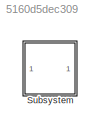
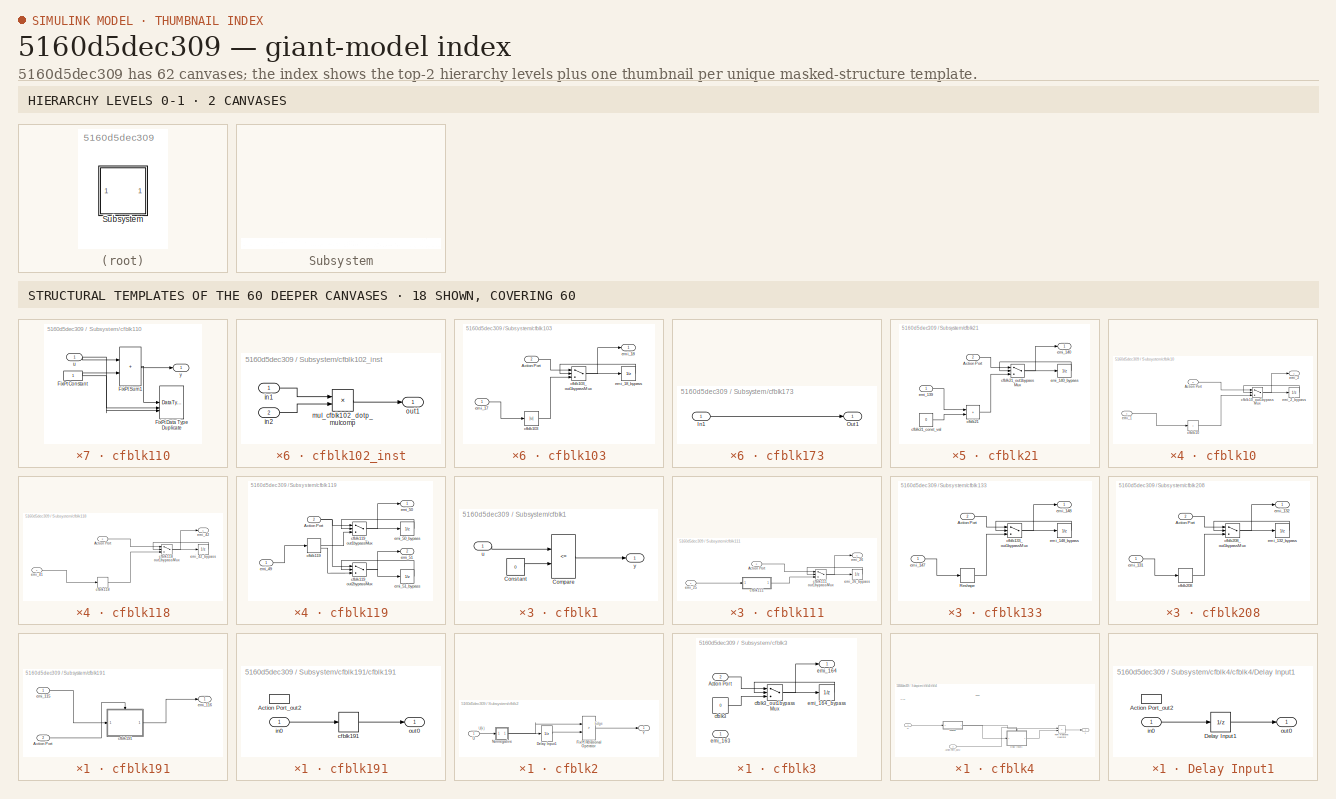
[diagram: thumbnail index - top-2 hierarchy levels (2 canvases) + 18 structural-template representatives of the remaining 60 canvases]
MODEL slx_5160d5dec309
KIND model
CONFIG AbsTol = auto
CONFIG EnableMultiTasking = off
CONFIG FixedStep = auto
CONFIG MaxStep = auto
CONFIG MinStep = auto
CONFIG RelTol = 1e-3
CONFIG SampleTimeConstraint = Unconstrained
CONFIG SolverName = VariableStepAuto
CONFIG StartTime = 0.0
CONFIG StopTime = 10.0
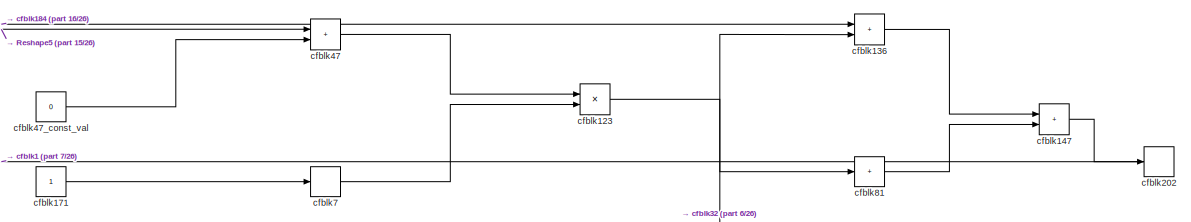
[diagram: Subsystem - part 1/26, top right region]
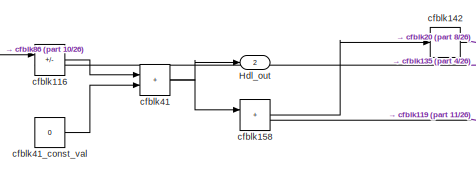
[diagram: Subsystem - part 2/26, top left region]
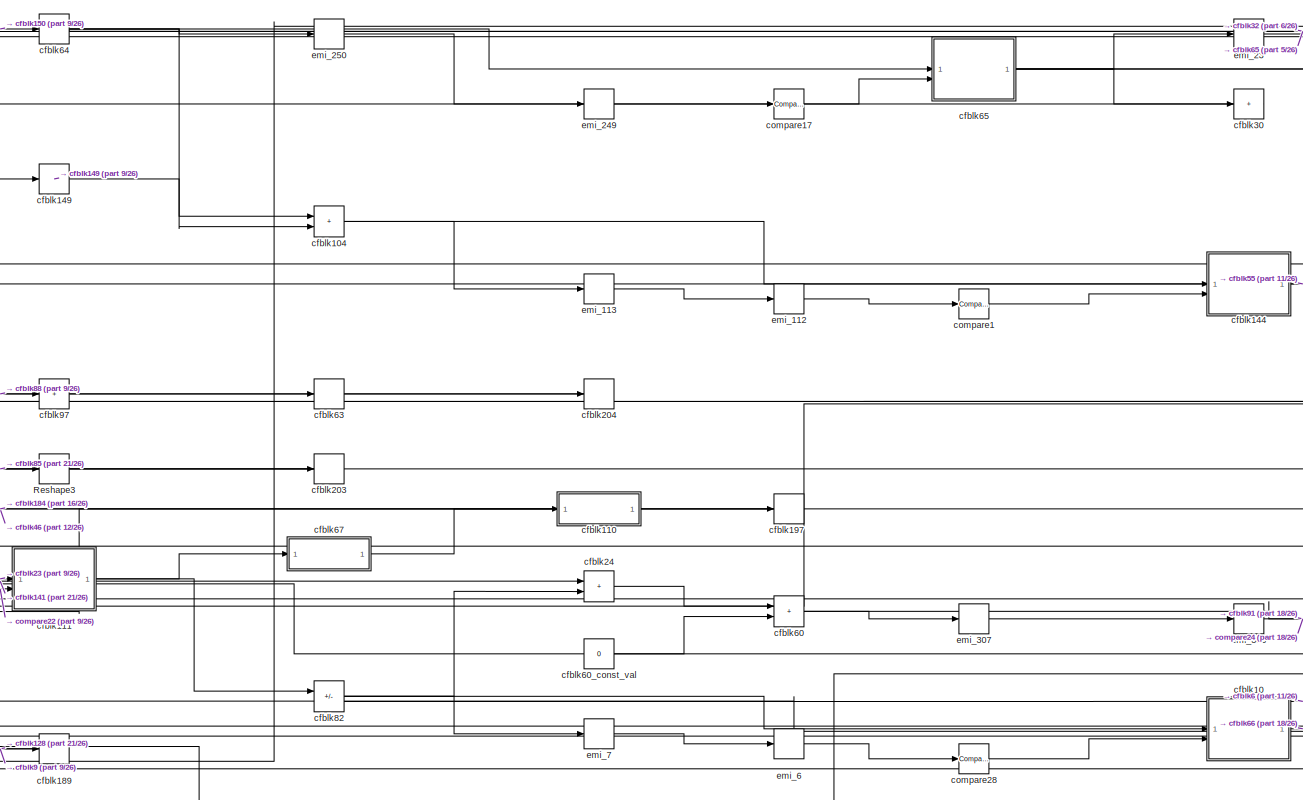
[diagram: Subsystem - part 3/26, central region]
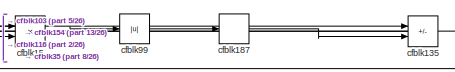
[diagram: Subsystem - part 4/26, top center region]
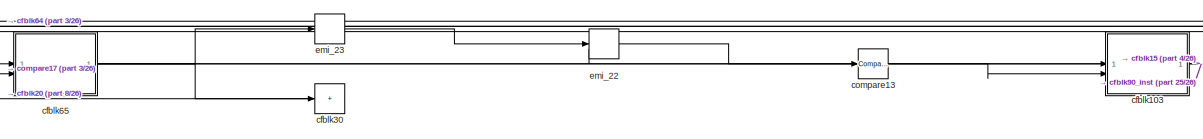
[diagram: Subsystem - part 5/26, top center region]
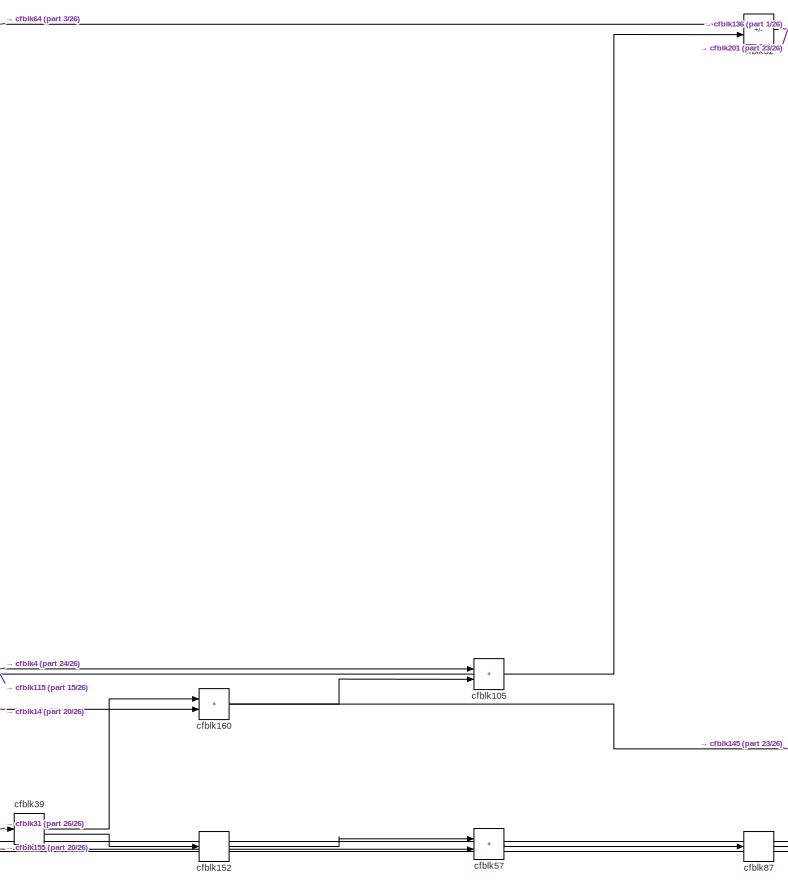
[diagram: Subsystem - part 6/26, middle right region]
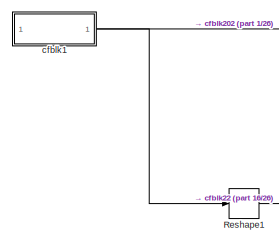
[diagram: Subsystem - part 7/26, middle left region]
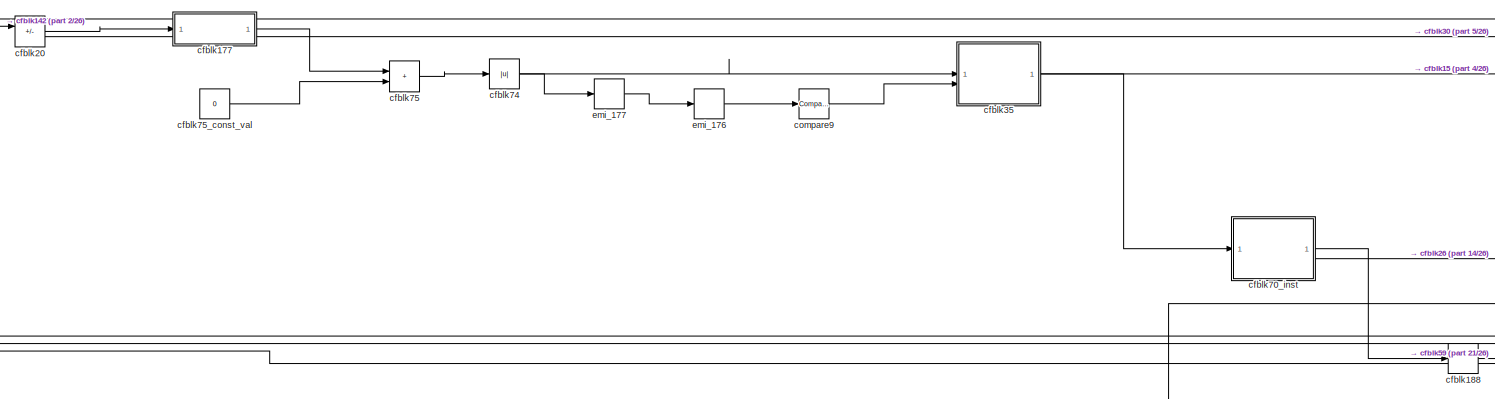
[diagram: Subsystem - part 8/26, middle left region]
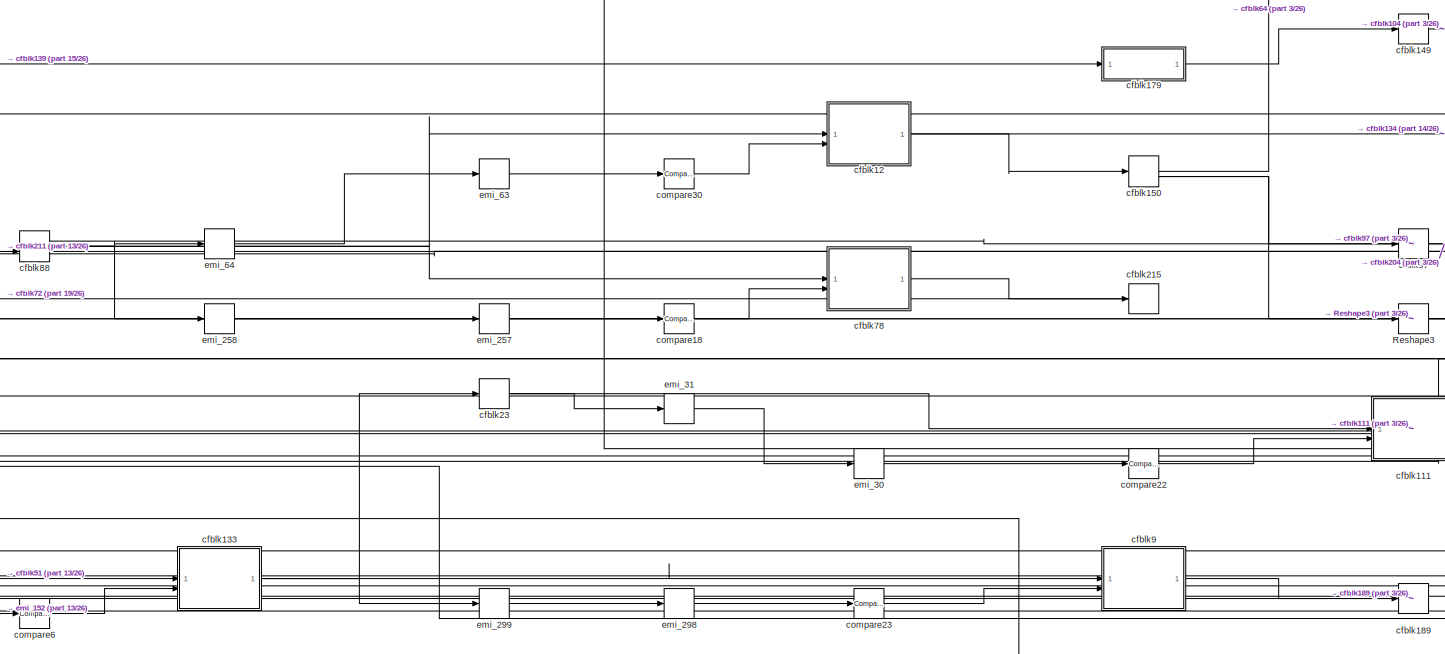
[diagram: Subsystem - part 9/26, central region]
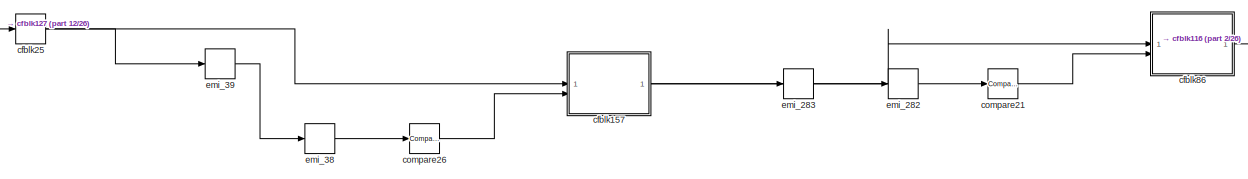
[diagram: Subsystem - part 10/26, middle left region]
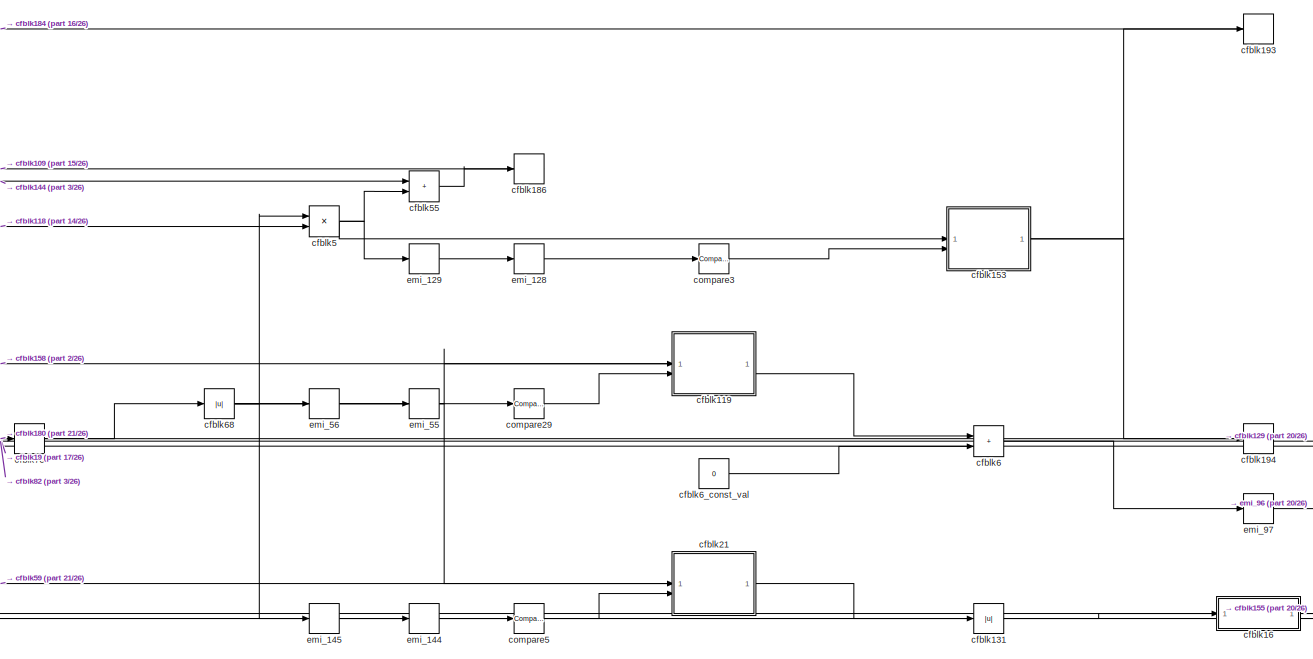
[diagram: Subsystem - part 11/26, middle right region]
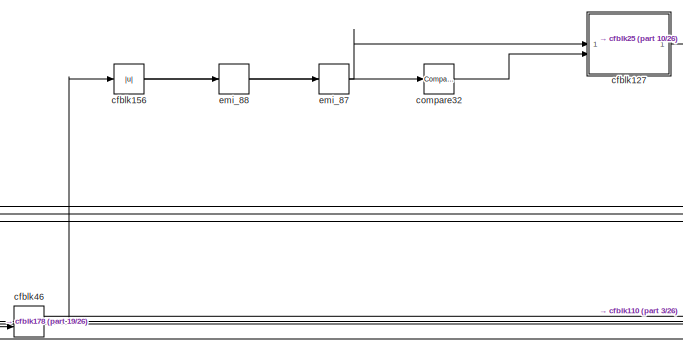
[diagram: Subsystem - part 12/26, middle left region]
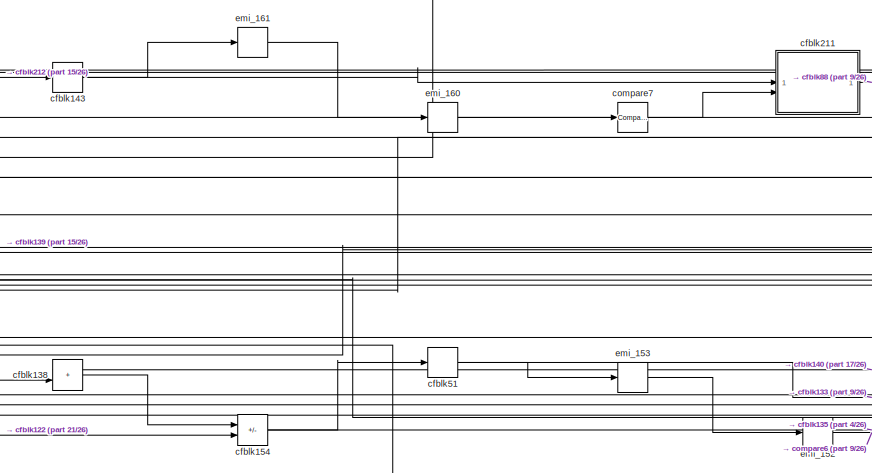
[diagram: Subsystem - part 13/26, central region]
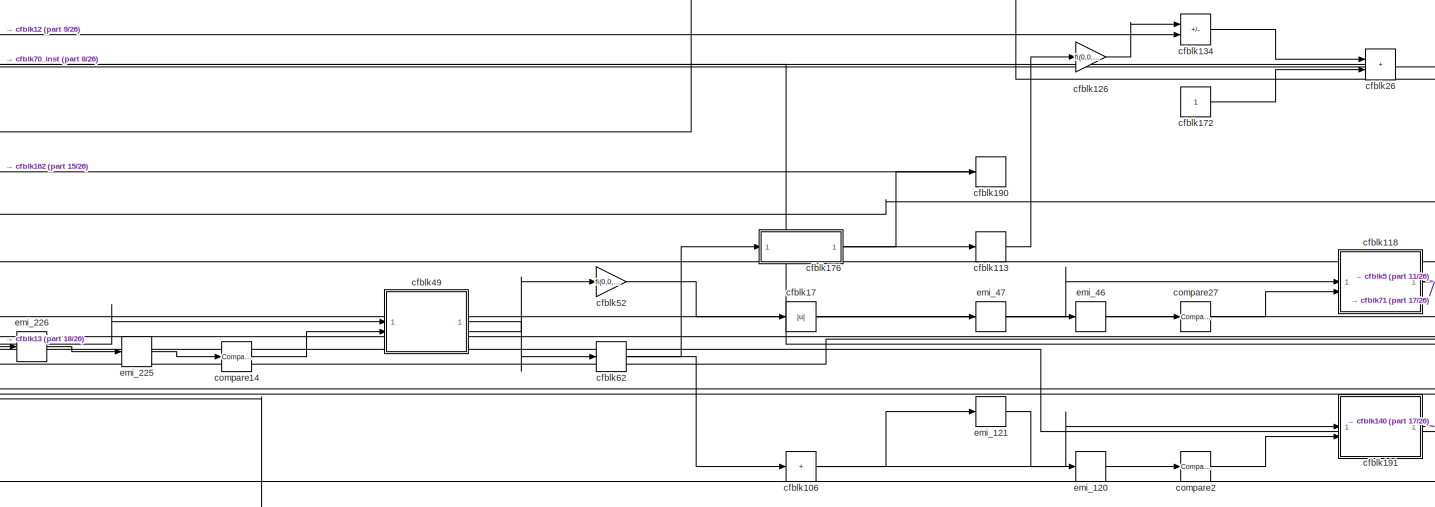
[diagram: Subsystem - part 14/26, central region]
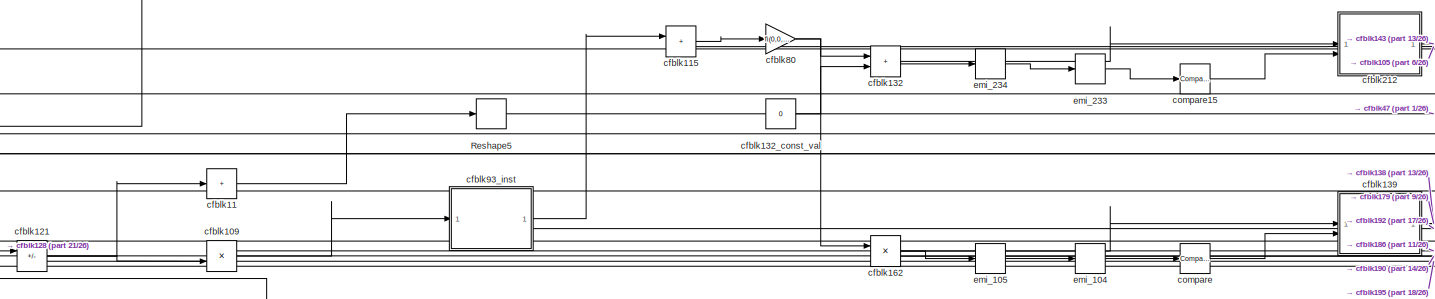
[diagram: Subsystem - part 15/26, central region]
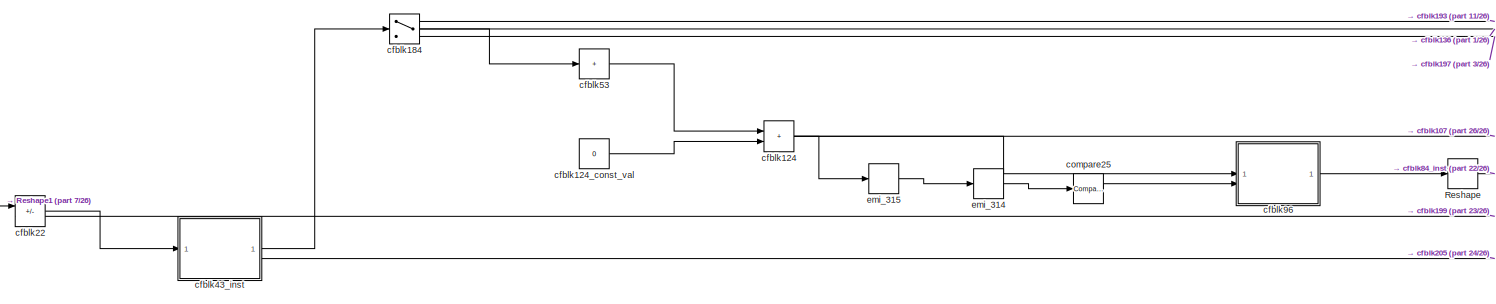
[diagram: Subsystem - part 16/26, middle left region]
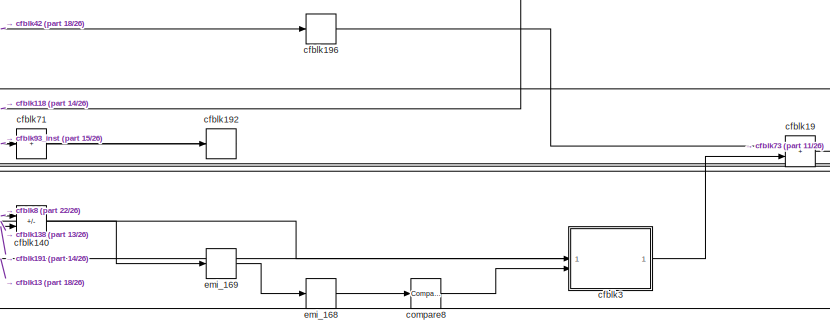
[diagram: Subsystem - part 17/26, bottom right region]
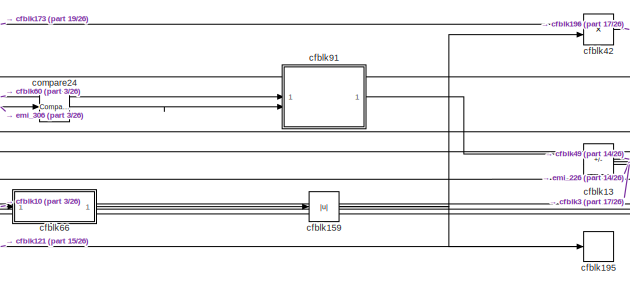
[diagram: Subsystem - part 18/26, bottom center region]
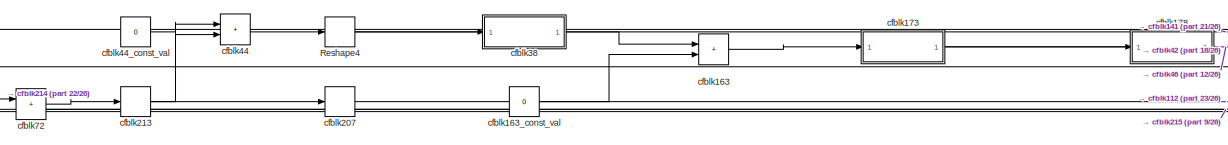
[diagram: Subsystem - part 19/26, middle left region]
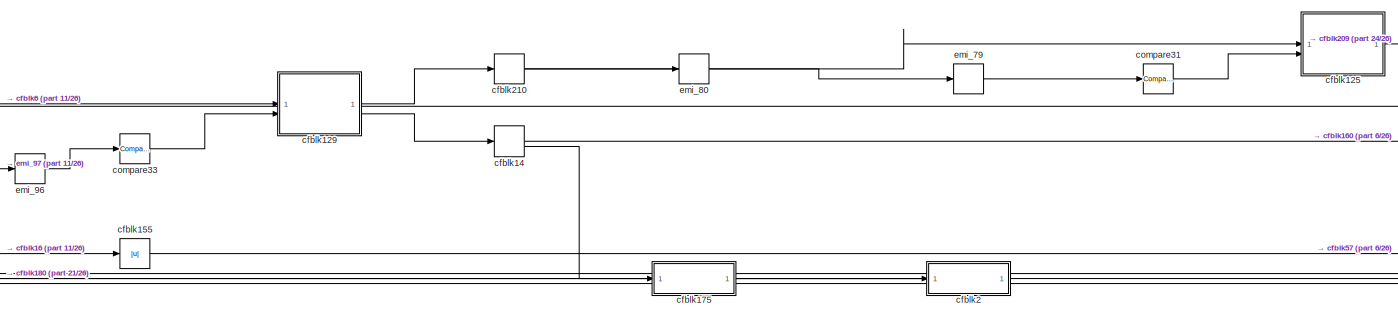
[diagram: Subsystem - part 20/26, bottom right region]
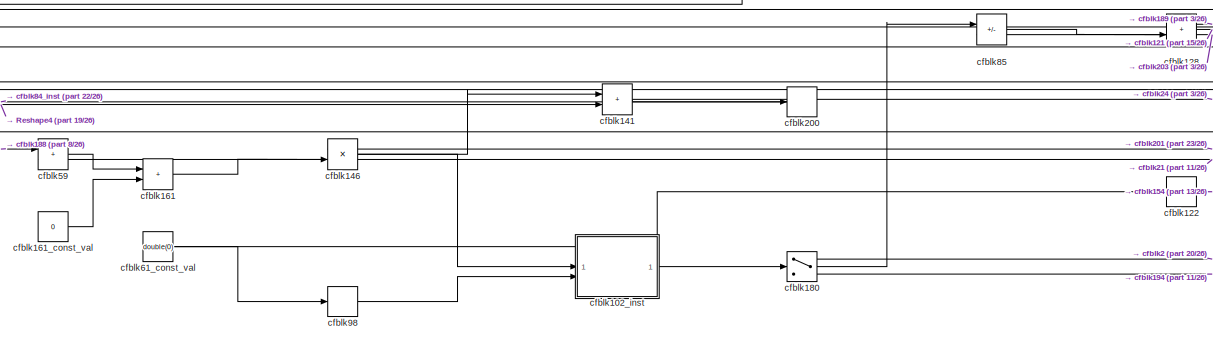
[diagram: Subsystem - part 21/26, bottom center region]
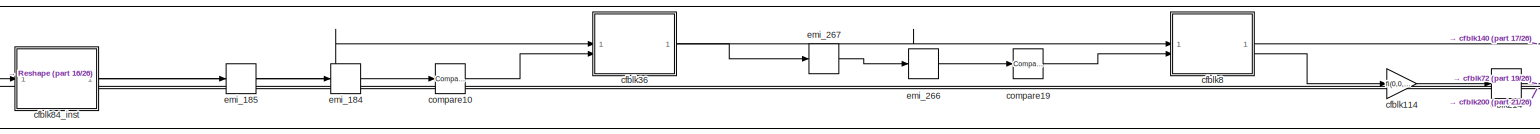
[diagram: Subsystem - part 22/26, bottom left region]
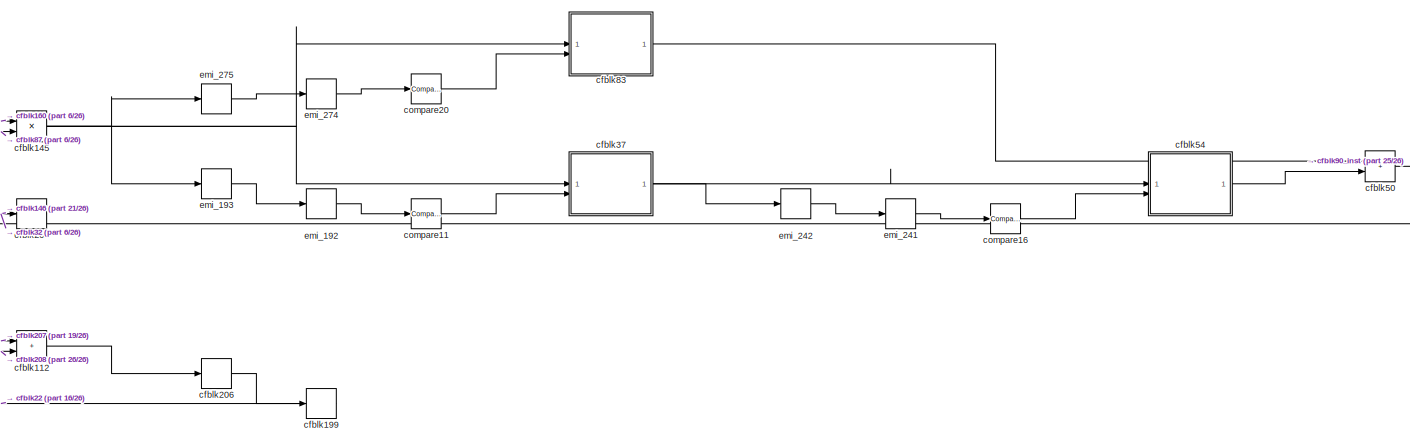
[diagram: Subsystem - part 23/26, bottom right region]
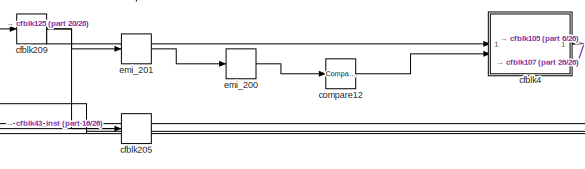
[diagram: Subsystem - part 24/26, bottom right region]
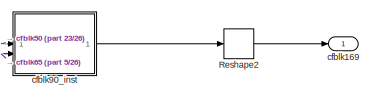
[diagram: Subsystem - part 25/26, bottom right region]
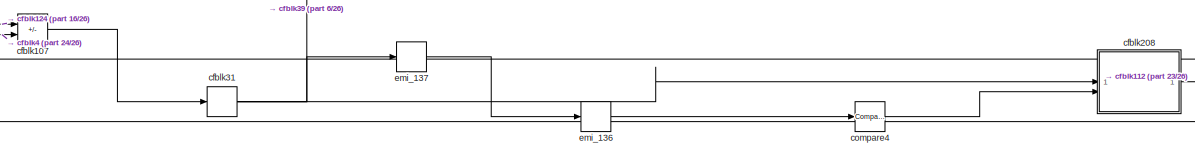
[diagram: Subsystem - part 26/26, bottom right region]
BLOCK [SubSystem] Subsystem
BLOCK [Outport] Subsystem/Hdl_out
  OutDataTypeStr = uint8
  Port = 2
  SampleTime = 1
BLOCK [Reshape] Subsystem/Reshape
BLOCK [Reshape] Subsystem/Reshape1
BLOCK [Reshape] Subsystem/Reshape2
BLOCK [Reshape] Subsystem/Reshape3
BLOCK [Reshape] Subsystem/Reshape4
BLOCK [Reshape] Subsystem/Reshape5
BLOCK [SubSystem] Subsystem/cfblk1
BLOCK [RelationalOperator] Subsystem/cfblk1/Compare
  Operator = <=
  OutDataTypeStr = fixdt(0, 8)
BLOCK [Constant] Subsystem/cfblk1/Constant
  DisableCoverage = on
  OutDataTypeStr = Inherit: Inherit via back propagation
  PreserveConstantTs = on
  SampleTime = -1
  Value = 0
BLOCK [Inport] Subsystem/cfblk1/u
  OutDataTypeStr = uint8
  SampleTime = 1
BLOCK [Outport] Subsystem/cfblk1/y
  SampleTime = 1
BLOCK [SubSystem] Subsystem/cfblk10
BLOCK [Inport] Subsystem/cfblk10/Action Port
  OutDataTypeStr = boolean
  Port = 2
  SampleTime = 1
BLOCK [Sum] Subsystem/cfblk10/cfblk10
  IconShape = rectangular
  Inputs = +
BLOCK [MultiPortSwitch] Subsystem/cfblk10/cfblk10_out1bypassMux
  DataPortOrder = Zero-based contiguous
  InputSameDT = off
  Inputs = 2
  OutDataTypeStr = uint8
  SampleTime = 1
  SaturateOnIntegerOverflow = off
  zeroidx = on
BLOCK [Inport] Subsystem/cfblk10/emi_1
  OutDataTypeStr = uint8
  PortDimensions = 1
  SampleTime = 1
BLOCK [Outport] Subsystem/cfblk10/emi_2
  InitialOutput = 0
  SampleTime = 1
BLOCK [UnitDelay] Subsystem/cfblk10/emi_2_bypass
  InitialCondition = fi(0,0,8,0,"hex","00")
  SampleTime = 1
BLOCK [SubSystem] Subsystem/cfblk102_inst
BLOCK [Inport] Subsystem/cfblk102_inst/in1
  OutDataTypeStr = uint8
  SampleTime = 1
BLOCK [Inport] Subsystem/cfblk102_inst/in2
  OutDataTypeStr = uint8
  Port = 2
  SampleTime = 1
BLOCK [Product] Subsystem/cfblk102_inst/mul_cfblk102_dotp_mulcomp
  Inputs = **
  OutDataTypeStr = uint8
  SampleTime = 1
BLOCK [Outport] Subsystem/cfblk102_inst/out1
  OutDataTypeStr = uint8
  SampleTime = 1
BLOCK [SubSystem] Subsystem/cfblk103
BLOCK [Inport] Subsystem/cfblk103/Action Port
  OutDataTypeStr = boolean
  Port = 2
  SampleTime = 1
BLOCK [Abs] Subsystem/cfblk103/cfblk103
  OutDataTypeStr = uint8
  SampleTime = 1
  SaturateOnIntegerOverflow = off
BLOCK [MultiPortSwitch] Subsystem/cfblk103/cfblk103_out1bypassMux
  DataPortOrder = Zero-based contiguous
  InputSameDT = off
  Inputs = 2
  OutDataTypeStr = uint8
  SampleTime = 1
  SaturateOnIntegerOverflow = off
  zeroidx = on
BLOCK [Inport] Subsystem/cfblk103/emi_17
  OutDataTypeStr = uint8
  PortDimensions = 1
  SampleTime = 1
BLOCK [Outport] Subsystem/cfblk103/emi_18
  InitialOutput = 0
  SampleTime = 1
BLOCK [UnitDelay] Subsystem/cfblk103/emi_18_bypass
  InitialCondition = fi(0,0,8,0,"hex","00")
  SampleTime = 1
BLOCK [Sum] Subsystem/cfblk104
  AccumDataTypeStr = uint8
  IconShape = rectangular
  OutDataTypeStr = uint8
  SampleTime = 1
BLOCK [Sum] Subsystem/cfblk105
  AccumDataTypeStr = uint8
  IconShape = rectangular
  OutDataTypeStr = uint8
  SampleTime = 1
BLOCK [Sum] Subsystem/cfblk106
  IconShape = rectangular
  Inputs = +
  OutDataTypeStr = uint8
BLOCK [Sum] Subsystem/cfblk107
  AccumDataTypeStr = uint8
  IconShape = rectangular
  Inputs = +-
  OutDataTypeStr = uint8
  SampleTime = 1
BLOCK [Product] Subsystem/cfblk109
  Inputs = */
  OutDataTypeStr = uint8
  RndMeth = Zero
  SampleTime = 1
  SaturateOnIntegerOverflow = on
BLOCK [Sum] Subsystem/cfblk11
  IconShape = rectangular
  Inputs = +
  OutDataTypeStr = uint8
BLOCK [SubSystem] Subsystem/cfblk110
BLOCK [Constant] Subsystem/cfblk110/FixPt Constant
  DisableCoverage = on
  OutDataTypeStr = Inherit: Inherit via back propagation
  SampleTime = -1
BLOCK [DataTypeDuplicate] Subsystem/cfblk110/FixPt Data Type Duplicate
  DisableCoverage = on
  NumInputPorts = 3
BLOCK [Sum] Subsystem/cfblk110/FixPt Sum1
  IconShape = rectangular
  InputSameDT = on
  LockScale = on
  OutDataTypeStr = Inherit: Inherit via back propagation
BLOCK [Inport] Subsystem/cfblk110/u
  OutDataTypeStr = uint8
  SampleTime = 1
BLOCK [Outport] Subsystem/cfblk110/y
  SampleTime = 1
BLOCK [SubSystem] Subsystem/cfblk111
BLOCK [Inport] Subsystem/cfblk111/Action Port
  OutDataTypeStr = boolean
  Port = 2
  SampleTime = 1
BLOCK [SubSystem] Subsystem/cfblk111/cfblk111
BLOCK [Constant] Subsystem/cfblk111/cfblk111/FixPt Constant
  DisableCoverage = on
  OutDataTypeStr = Inherit: Inherit via back propagation
  SampleTime = -1
BLOCK [DataTypeDuplicate] Subsystem/cfblk111/cfblk111/FixPt Data Type Duplicate
  DisableCoverage = on
  NumInputPorts = 3
BLOCK [Sum] Subsystem/cfblk111/cfblk111/FixPt Sum1
  IconShape = rectangular
  InputSameDT = on
  LockScale = on
  OutDataTypeStr = Inherit: Inherit via back propagation
BLOCK [Inport] Subsystem/cfblk111/cfblk111/u
  OutDataTypeStr = uint8
  SampleTime = 1
BLOCK [Outport] Subsystem/cfblk111/cfblk111/y
  InitialOutput = 0
  SampleTime = 1
BLOCK [MultiPortSwitch] Subsystem/cfblk111/cfblk111_out1bypassMux
  DataPortOrder = Zero-based contiguous
  InputSameDT = off
  Inputs = 2
  OutDataTypeStr = uint8
  SampleTime = 1
  SaturateOnIntegerOverflow = off
  zeroidx = on
BLOCK [Inport] Subsystem/cfblk111/emi_25
  OutDataTypeStr = uint8
  PortDimensions = 1
  SampleTime = 1
BLOCK [Outport] Subsystem/cfblk111/emi_26
  InitialOutput = 0
  SampleTime = 1
BLOCK [UnitDelay] Subsystem/cfblk111/emi_26_bypass
  InitialCondition = fi(0,0,8,0,"hex","00")
  SampleTime = 1
BLOCK [Sum] Subsystem/cfblk112
  AccumDataTypeStr = uint8
  IconShape = rectangular
  OutDataTypeStr = uint8
  SampleTime = 1
BLOCK [Signum] Subsystem/cfblk113
  SampleTime = 1
BLOCK [Gain] Subsystem/cfblk114
  Gain = fi(0,0,8,7,"hex","80")
  OutDataTypeStr = uint8
  ParamDataTypeStr = fixdt(0, 8, 7)
  SampleTime = 1
BLOCK [Sum] Subsystem/cfblk115
  AccumDataTypeStr = uint8
  IconShape = rectangular
  OutDataTypeStr = uint8
  SampleTime = 1
BLOCK [Sum] Subsystem/cfblk116
  AccumDataTypeStr = uint8
  IconShape = rectangular
  Inputs = +-
  OutDataTypeStr = uint8
  SampleTime = 1
BLOCK [SubSystem] Subsystem/cfblk118
BLOCK [Inport] Subsystem/cfblk118/Action Port
  OutDataTypeStr = boolean
  Port = 2
  SampleTime = 1
BLOCK [MinMax] Subsystem/cfblk118/cfblk118
BLOCK [MultiPortSwitch] Subsystem/cfblk118/cfblk118_out1bypassMux
  DataPortOrder = Zero-based contiguous
  InputSameDT = off
  Inputs = 2
  OutDataTypeStr = uint8
  SampleTime = 1
  SaturateOnIntegerOverflow = off
  zeroidx = on
BLOCK [Inport] Subsystem/cfblk118/emi_41
  OutDataTypeStr = uint8
  PortDimensions = 1
  SampleTime = 1
BLOCK [Outport] Subsystem/cfblk118/emi_42
  InitialOutput = 0
  SampleTime = 1
BLOCK [UnitDelay] Subsystem/cfblk118/emi_42_bypass
  InitialCondition = fi(0,0,8,0,"hex","00")
  SampleTime = 1
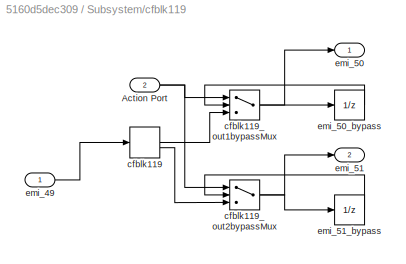
BLOCK [SubSystem] Subsystem/cfblk119
BLOCK [Inport] Subsystem/cfblk119/Action Port
  OutDataTypeStr = boolean
  Port = 2
  SampleTime = 1
BLOCK [ComplexToRealImag] Subsystem/cfblk119/cfblk119
  SampleTime = 1
BLOCK [MultiPortSwitch] Subsystem/cfblk119/cfblk119_out1bypassMux
  DataPortOrder = Zero-based contiguous
  InputSameDT = off
  Inputs = 2
  OutDataTypeStr = uint8
  SampleTime = 1
  SaturateOnIntegerOverflow = off
  zeroidx = on
BLOCK [MultiPortSwitch] Subsystem/cfblk119/cfblk119_out2bypassMux
  DataPortOrder = Zero-based contiguous
  InputSameDT = off
  Inputs = 2
  OutDataTypeStr = uint8
  SampleTime = 1
  SaturateOnIntegerOverflow = off
  zeroidx = on
BLOCK [Inport] Subsystem/cfblk119/emi_49
  OutDataTypeStr = uint8
  PortDimensions = 1
  SampleTime = 1
BLOCK [Outport] Subsystem/cfblk119/emi_50
  InitialOutput = 0
  SampleTime = 1
BLOCK [UnitDelay] Subsystem/cfblk119/emi_50_bypass
  InitialCondition = fi(0,0,8,0,"hex","00")
  SampleTime = 1
BLOCK [Outport] Subsystem/cfblk119/emi_51
  InitialOutput = 0
  Port = 2
  SampleTime = 1
BLOCK [UnitDelay] Subsystem/cfblk119/emi_51_bypass
  InitialCondition = fi(0,0,8,0,"hex","00")
  SampleTime = 1
BLOCK [SubSystem] Subsystem/cfblk12
BLOCK [Inport] Subsystem/cfblk12/Action Port
  OutDataTypeStr = boolean
  Port = 2
  SampleTime = 1
BLOCK [Sum] Subsystem/cfblk12/cfblk12
  IconShape = rectangular
  Inputs = +
BLOCK [MultiPortSwitch] Subsystem/cfblk12/cfblk12_out1bypassMux
  DataPortOrder = Zero-based contiguous
  InputSameDT = off
  Inputs = 2
  OutDataTypeStr = uint8
  SampleTime = 1
  SaturateOnIntegerOverflow = off
  zeroidx = on
BLOCK [Inport] Subsystem/cfblk12/emi_58
  OutDataTypeStr = uint8
  PortDimensions = 1
  SampleTime = 1
BLOCK [Outport] Subsystem/cfblk12/emi_59
  InitialOutput = 0
  SampleTime = 1
BLOCK [UnitDelay] Subsystem/cfblk12/emi_59_bypass
  InitialCondition = fi(0,0,8,0,"hex","00")
  SampleTime = 1
BLOCK [Sum] Subsystem/cfblk121
  AccumDataTypeStr = uint8
  IconShape = rectangular
  Inputs = +-
  OutDataTypeStr = uint8
  SampleTime = 1
BLOCK [MinMax] Subsystem/cfblk122
  OutDataTypeStr = uint8
BLOCK [Product] Subsystem/cfblk123
  Inputs = */
  OutDataTypeStr = uint8
  RndMeth = Zero
  SampleTime = 1
  SaturateOnIntegerOverflow = on
BLOCK [Sum] Subsystem/cfblk124
  AccumDataTypeStr = uint8
  IconShape = rectangular
  OutDataTypeStr = uint8
  RndMeth = Nearest
  SampleTime = 1
BLOCK [Constant] Subsystem/cfblk124_const_val
  OutDataTypeStr = uint8
  SampleTime = 1
  Value = 0
  VectorParams1D = off
BLOCK [SubSystem] Subsystem/cfblk125
BLOCK [Inport] Subsystem/cfblk125/Action Port
  OutDataTypeStr = boolean
  Port = 2
  SampleTime = 1
BLOCK [MinMax] Subsystem/cfblk125/cfblk125
BLOCK [MultiPortSwitch] Subsystem/cfblk125/cfblk125_out1bypassMux
  DataPortOrder = Zero-based contiguous
  InputSameDT = off
  Inputs = 2
  OutDataTypeStr = uint8
  SampleTime = 1
  SaturateOnIntegerOverflow = off
  zeroidx = on
BLOCK [Inport] Subsystem/cfblk125/emi_74
  OutDataTypeStr = uint8
  PortDimensions = 1
  SampleTime = 1
BLOCK [Outport] Subsystem/cfblk125/emi_75
  InitialOutput = 0
  SampleTime = 1
BLOCK [UnitDelay] Subsystem/cfblk125/emi_75_bypass
  InitialCondition = fi(0,0,8,0,"hex","00")
  SampleTime = 1
BLOCK [Gain] Subsystem/cfblk126
  Gain = fi(0,0,8,7,"hex","80")
  OutDataTypeStr = uint8
  ParamDataTypeStr = fixdt(0, 8, 7)
  SampleTime = 1
BLOCK [SubSystem] Subsystem/cfblk127
BLOCK [Inport] Subsystem/cfblk127/Action Port
  OutDataTypeStr = boolean
  Port = 2
  SampleTime = 1
BLOCK [MinMax] Subsystem/cfblk127/cfblk127
BLOCK [MultiPortSwitch] Subsystem/cfblk127/cfblk127_out1bypassMux
  DataPortOrder = Zero-based contiguous
  InputSameDT = off
  Inputs = 2
  OutDataTypeStr = uint8
  SampleTime = 1
  SaturateOnIntegerOverflow = off
  zeroidx = on
BLOCK [Inport] Subsystem/cfblk127/emi_82
  OutDataTypeStr = uint8
  PortDimensions = 1
  SampleTime = 1
BLOCK [Outport] Subsystem/cfblk127/emi_83
  InitialOutput = 0
  SampleTime = 1
BLOCK [UnitDelay] Subsystem/cfblk127/emi_83_bypass
  InitialCondition = fi(0,0,8,0,"hex","00")
  SampleTime = 1
BLOCK [Sum] Subsystem/cfblk128
  AccumDataTypeStr = uint8
  IconShape = rectangular
  OutDataTypeStr = uint8
  SampleTime = 1
BLOCK [SubSystem] Subsystem/cfblk129
BLOCK [Inport] Subsystem/cfblk129/Action Port
  OutDataTypeStr = boolean
  Port = 2
  SampleTime = 1
BLOCK [ComplexToRealImag] Subsystem/cfblk129/cfblk129
  SampleTime = 1
BLOCK [MultiPortSwitch] Subsystem/cfblk129/cfblk129_out1bypassMux
  DataPortOrder = Zero-based contiguous
  InputSameDT = off
  Inputs = 2
  OutDataTypeStr = uint8
  SampleTime = 1
  SaturateOnIntegerOverflow = off
  zeroidx = on
BLOCK [MultiPortSwitch] Subsystem/cfblk129/cfblk129_out2bypassMux
  DataPortOrder = Zero-based contiguous
  InputSameDT = off
  Inputs = 2
  OutDataTypeStr = uint8
  SampleTime = 1
  SaturateOnIntegerOverflow = off
  zeroidx = on
BLOCK [Inport] Subsystem/cfblk129/emi_90
  OutDataTypeStr = uint8
  PortDimensions = 1
  SampleTime = 1
BLOCK [Outport] Subsystem/cfblk129/emi_91
  InitialOutput = 0
  SampleTime = 1
BLOCK [UnitDelay] Subsystem/cfblk129/emi_91_bypass
  InitialCondition = fi(0,0,8,0,"hex","00")
  SampleTime = 1
BLOCK [Outport] Subsystem/cfblk129/emi_92
  InitialOutput = 0
  Port = 2
  SampleTime = 1
BLOCK [UnitDelay] Subsystem/cfblk129/emi_92_bypass
  InitialCondition = fi(0,0,8,0,"hex","00")
  SampleTime = 1
BLOCK [Sum] Subsystem/cfblk13
  AccumDataTypeStr = uint8
  IconShape = rectangular
  Inputs = +-
  OutDataTypeStr = uint8
  SampleTime = 1
BLOCK [Abs] Subsystem/cfblk131
  OutDataTypeStr = uint8
  SampleTime = 1
  SaturateOnIntegerOverflow = off
BLOCK [Sum] Subsystem/cfblk132
  AccumDataTypeStr = uint8
  IconShape = rectangular
  OutDataTypeStr = uint8
  RndMeth = Nearest
  SampleTime = 1
BLOCK [Constant] Subsystem/cfblk132_const_val
  OutDataTypeStr = uint8
  SampleTime = 1
  Value = 0
  VectorParams1D = off
BLOCK [SubSystem] Subsystem/cfblk133
BLOCK [Inport] Subsystem/cfblk133/Action Port
  OutDataTypeStr = boolean
  Port = 2
  SampleTime = 1
BLOCK [Reshape] Subsystem/cfblk133/Reshape
BLOCK [MultiPortSwitch] Subsystem/cfblk133/cfblk133_out1bypassMux
  DataPortOrder = Zero-based contiguous
  InputSameDT = off
  Inputs = 2
  OutDataTypeStr = uint8
  SampleTime = 1
  SaturateOnIntegerOverflow = off
  zeroidx = on
BLOCK [Inport] Subsystem/cfblk133/emi_147
  OutDataTypeStr = uint8
  PortDimensions = 1
  SampleTime = 1
BLOCK [Outport] Subsystem/cfblk133/emi_148
  InitialOutput = 0
  SampleTime = 1
BLOCK [UnitDelay] Subsystem/cfblk133/emi_148_bypass
  InitialCondition = fi(0,0,8,0,"hex","00")
  SampleTime = 1
BLOCK [Sum] Subsystem/cfblk134
  AccumDataTypeStr = uint8
  IconShape = rectangular
  Inputs = +-
  OutDataTypeStr = uint8
  SampleTime = 1
BLOCK [Sum] Subsystem/cfblk135
  AccumDataTypeStr = uint8
  IconShape = rectangular
  Inputs = +-
  OutDataTypeStr = uint8
  SampleTime = 1
BLOCK [Sum] Subsystem/cfblk136
  AccumDataTypeStr = uint8
  IconShape = rectangular
  OutDataTypeStr = uint8
  SampleTime = 1
BLOCK [Sum] Subsystem/cfblk138
  AccumDataTypeStr = uint8
  IconShape = rectangular
  OutDataTypeStr = uint8
  SampleTime = 1
BLOCK [SubSystem] Subsystem/cfblk139
BLOCK [Inport] Subsystem/cfblk139/Action Port
  OutDataTypeStr = boolean
  Port = 2
  SampleTime = 1
BLOCK [Reshape] Subsystem/cfblk139/Reshape
BLOCK [MultiPortSwitch] Subsystem/cfblk139/cfblk139_out1bypassMux
  DataPortOrder = Zero-based contiguous
  InputSameDT = off
  Inputs = 2
  OutDataTypeStr = uint8
  SampleTime = 1
  SaturateOnIntegerOverflow = off
  zeroidx = on
BLOCK [Outport] Subsystem/cfblk139/emi_100
  InitialOutput = 0
  SampleTime = 1
BLOCK [UnitDelay] Subsystem/cfblk139/emi_100_bypass
  InitialCondition = fi(0,0,8,0,"hex","00")
  SampleTime = 1
BLOCK [Inport] Subsystem/cfblk139/emi_99
  OutDataTypeStr = uint8
  PortDimensions = 1
  SampleTime = 1
BLOCK [ComplexToRealImag] Subsystem/cfblk14
  SampleTime = 1
BLOCK [Sum] Subsystem/cfblk140
  AccumDataTypeStr = uint8
  IconShape = rectangular
  Inputs = +-
  OutDataTypeStr = uint8
  SampleTime = 1
BLOCK [Sum] Subsystem/cfblk141
  AccumDataTypeStr = uint8
  IconShape = rectangular
  OutDataTypeStr = uint8
  SampleTime = 1
BLOCK [MinMax] Subsystem/cfblk142
  OutDataTypeStr = uint8
BLOCK [MinMax] Subsystem/cfblk143
  OutDataTypeStr = uint8
BLOCK [SubSystem] Subsystem/cfblk144
BLOCK [Inport] Subsystem/cfblk144/Action Port
  OutDataTypeStr = boolean
  Port = 2
  SampleTime = 1
BLOCK [Abs] Subsystem/cfblk144/cfblk144
  OutDataTypeStr = uint8
  SampleTime = 1
  SaturateOnIntegerOverflow = off
BLOCK [MultiPortSwitch] Subsystem/cfblk144/cfblk144_out1bypassMux
  DataPortOrder = Zero-based contiguous
  InputSameDT = off
  Inputs = 2
  OutDataTypeStr = uint8
  SampleTime = 1
  SaturateOnIntegerOverflow = off
  zeroidx = on
BLOCK [Inport] Subsystem/cfblk144/emi_107
  OutDataTypeStr = uint8
  PortDimensions = 1
  SampleTime = 1
BLOCK [Outport] Subsystem/cfblk144/emi_108
  InitialOutput = 0
  SampleTime = 1
BLOCK [UnitDelay] Subsystem/cfblk144/emi_108_bypass
  InitialCondition = fi(0,0,8,0,"hex","00")
  SampleTime = 1
BLOCK [Product] Subsystem/cfblk145
  Inputs = */
  OutDataTypeStr = uint8
  RndMeth = Zero
  SampleTime = 1
  SaturateOnIntegerOverflow = on
BLOCK [Product] Subsystem/cfblk146
  Inputs = */
  OutDataTypeStr = uint8
  RndMeth = Zero
  SampleTime = 1
  SaturateOnIntegerOverflow = on
BLOCK [Sum] Subsystem/cfblk147
  AccumDataTypeStr = uint8
  IconShape = rectangular
  OutDataTypeStr = uint8
  SampleTime = 1
BLOCK [MinMax] Subsystem/cfblk149
  OutDataTypeStr = uint8
BLOCK [Product] Subsystem/cfblk15
  Inputs = */
  OutDataTypeStr = uint8
  RndMeth = Zero
  SampleTime = 1
  SaturateOnIntegerOverflow = on
BLOCK [ComplexToRealImag] Subsystem/cfblk150
  SampleTime = 1
BLOCK [MinMax] Subsystem/cfblk152
  OutDataTypeStr = uint8
BLOCK [SubSystem] Subsystem/cfblk153
BLOCK [Inport] Subsystem/cfblk153/Action Port
  OutDataTypeStr = boolean
  Port = 2
  SampleTime = 1
BLOCK [SubSystem] Subsystem/cfblk153/cfblk153
BLOCK [Constant] Subsystem/cfblk153/cfblk153/FixPt Constant
  DisableCoverage = on
  OutDataTypeStr = Inherit: Inherit via back propagation
  SampleTime = -1
BLOCK [DataTypeDuplicate] Subsystem/cfblk153/cfblk153/FixPt Data Type Duplicate
  DisableCoverage = on
  NumInputPorts = 3
BLOCK [Sum] Subsystem/cfblk153/cfblk153/FixPt Sum1
  IconShape = rectangular
  InputSameDT = on
  LockScale = on
  OutDataTypeStr = Inherit: Inherit via back propagation
BLOCK [Inport] Subsystem/cfblk153/cfblk153/u
  OutDataTypeStr = uint8
  SampleTime = 1
BLOCK [Outport] Subsystem/cfblk153/cfblk153/y
  InitialOutput = 0
  SampleTime = 1
BLOCK [MultiPortSwitch] Subsystem/cfblk153/cfblk153_out1bypassMux
  DataPortOrder = Zero-based contiguous
  InputSameDT = off
  Inputs = 2
  OutDataTypeStr = uint8
  SampleTime = 1
  SaturateOnIntegerOverflow = off
  zeroidx = on
BLOCK [Inport] Subsystem/cfblk153/emi_123
  OutDataTypeStr = uint8
  PortDimensions = 1
  SampleTime = 1
BLOCK [Outport] Subsystem/cfblk153/emi_124
  InitialOutput = 0
  SampleTime = 1
BLOCK [UnitDelay] Subsystem/cfblk153/emi_124_bypass
  InitialCondition = fi(0,0,8,0,"hex","00")
  SampleTime = 1
BLOCK [Sum] Subsystem/cfblk154
  AccumDataTypeStr = uint8
  IconShape = rectangular
  Inputs = +-
  OutDataTypeStr = uint8
  SampleTime = 1
BLOCK [Abs] Subsystem/cfblk155
  OutDataTypeStr = uint8
  SampleTime = 1
  SaturateOnIntegerOverflow = off
BLOCK [Abs] Subsystem/cfblk156
  OutDataTypeStr = uint8
  SampleTime = 1
  SaturateOnIntegerOverflow = off
BLOCK [SubSystem] Subsystem/cfblk157
BLOCK [Inport] Subsystem/cfblk157/Action Port
  OutDataTypeStr = boolean
  Port = 2
  SampleTime = 1
BLOCK [Abs] Subsystem/cfblk157/cfblk157
  OutDataTypeStr = uint8
  SampleTime = 1
  SaturateOnIntegerOverflow = off
BLOCK [MultiPortSwitch] Subsystem/cfblk157/cfblk157_out1bypassMux
  DataPortOrder = Zero-based contiguous
  InputSameDT = off
  Inputs = 2
  OutDataTypeStr = uint8
  SampleTime = 1
  SaturateOnIntegerOverflow = off
  zeroidx = on
BLOCK [Inport] Subsystem/cfblk157/emi_33
  OutDataTypeStr = uint8
  PortDimensions = 1
  SampleTime = 1
BLOCK [Outport] Subsystem/cfblk157/emi_34
  InitialOutput = 0
  SampleTime = 1
BLOCK [UnitDelay] Subsystem/cfblk157/emi_34_bypass
  InitialCondition = fi(0,0,8,0,"hex","00")
  SampleTime = 1
BLOCK [Sum] Subsystem/cfblk158
  AccumDataTypeStr = uint8
  IconShape = rectangular
  OutDataTypeStr = uint8
  SampleTime = 1
BLOCK [Abs] Subsystem/cfblk159
  OutDataTypeStr = uint8
  SampleTime = 1
  SaturateOnIntegerOverflow = off
BLOCK [SubSystem] Subsystem/cfblk16
BLOCK [Constant] Subsystem/cfblk16/FixPt Constant
  DisableCoverage = on
  OutDataTypeStr = Inherit: Inherit via back propagation
  SampleTime = -1
BLOCK [DataTypeDuplicate] Subsystem/cfblk16/FixPt Data Type Duplicate
  DisableCoverage = on
  NumInputPorts = 3
BLOCK [Sum] Subsystem/cfblk16/FixPt Sum1
  IconShape = rectangular
  InputSameDT = on
  LockScale = on
  OutDataTypeStr = Inherit: Inherit via back propagation
BLOCK [Inport] Subsystem/cfblk16/u
  OutDataTypeStr = uint8
  SampleTime = 1
BLOCK [Outport] Subsystem/cfblk16/y
  SampleTime = 1
BLOCK [Sum] Subsystem/cfblk160
  AccumDataTypeStr = uint8
  IconShape = rectangular
  OutDataTypeStr = uint8
  SampleTime = 1
BLOCK [Sum] Subsystem/cfblk161
  AccumDataTypeStr = uint8
  IconShape = rectangular
  OutDataTypeStr = uint8
  RndMeth = Nearest
  SampleTime = 1
BLOCK [Constant] Subsystem/cfblk161_const_val
  OutDataTypeStr = uint8
  SampleTime = 1
  Value = 0
  VectorParams1D = off
BLOCK [Product] Subsystem/cfblk162
  Inputs = */
  OutDataTypeStr = uint8
  RndMeth = Zero
  SampleTime = 1
  SaturateOnIntegerOverflow = on
BLOCK [Sum] Subsystem/cfblk163
  AccumDataTypeStr = uint8
  IconShape = rectangular
  OutDataTypeStr = uint8
  RndMeth = Nearest
  SampleTime = 1
BLOCK [Constant] Subsystem/cfblk163_const_val
  OutDataTypeStr = uint8
  SampleTime = 1
  Value = 0
  VectorParams1D = off
BLOCK [Outport] Subsystem/cfblk169
  InitialOutput = [0]
  OutDataTypeStr = uint8
  SampleTime = 1
  VectorParamsAs1DForOutWhenUnconnected = off
BLOCK [Abs] Subsystem/cfblk17
  OutDataTypeStr = uint8
  SampleTime = 1
  SaturateOnIntegerOverflow = off
BLOCK [Constant] Subsystem/cfblk171
  OutDataTypeStr = uint8
  SampleTime = 1
BLOCK [Constant] Subsystem/cfblk172
  OutDataTypeStr = uint8
  SampleTime = 1
BLOCK [SubSystem] Subsystem/cfblk173
BLOCK [Inport] Subsystem/cfblk173/In1
  OutDataTypeStr = uint8
  PortDimensions = 1
  SampleTime = 1
BLOCK [Outport] Subsystem/cfblk173/Out1
  InitialOutput = [0]
  SampleTime = 1
BLOCK [SubSystem] Subsystem/cfblk175
BLOCK [Inport] Subsystem/cfblk175/In1
  OutDataTypeStr = uint8
  PortDimensions = 1
  SampleTime = 1
BLOCK [Outport] Subsystem/cfblk175/Out1
  InitialOutput = [0]
  SampleTime = 1
BLOCK [SubSystem] Subsystem/cfblk176
BLOCK [Inport] Subsystem/cfblk176/In1
  OutDataTypeStr = uint8
  PortDimensions = 1
  SampleTime = 1
BLOCK [Outport] Subsystem/cfblk176/Out1
  InitialOutput = [0]
  SampleTime = 1
BLOCK [SubSystem] Subsystem/cfblk177
BLOCK [Inport] Subsystem/cfblk177/In1
  OutDataTypeStr = uint8
  PortDimensions = 1
  SampleTime = 1
BLOCK [Outport] Subsystem/cfblk177/Out1
  InitialOutput = [0]
  SampleTime = 1
BLOCK [SubSystem] Subsystem/cfblk178
BLOCK [Inport] Subsystem/cfblk178/In1
  OutDataTypeStr = uint8
  PortDimensions = 1
  SampleTime = 1
BLOCK [Outport] Subsystem/cfblk178/Out1
  InitialOutput = [0]
  SampleTime = 1
BLOCK [SubSystem] Subsystem/cfblk179
BLOCK [Inport] Subsystem/cfblk179/In1
  OutDataTypeStr = uint8
  PortDimensions = 1
  SampleTime = 1
BLOCK [Outport] Subsystem/cfblk179/Out1
  InitialOutput = [0]
  SampleTime = 1
BLOCK [Switch] Subsystem/cfblk180
  InputSameDT = off
  OutDataTypeStr = uint8
  SampleTime = 1
  SaturateOnIntegerOverflow = off
  Threshold = double(0)
BLOCK [Switch] Subsystem/cfblk184
  InputSameDT = off
  OutDataTypeStr = uint8
  SampleTime = 1
  SaturateOnIntegerOverflow = off
  Threshold = double(0)
BLOCK [Delay] Subsystem/cfblk186
  DelayLength = double(2)
  InitialCondition = 0
  InputPortMap = u0
  SampleTime = 1
BLOCK [Delay] Subsystem/cfblk187
  DelayLength = double(2)
  InitialCondition = 0
  InputPortMap = u0
  SampleTime = 1
BLOCK [Delay] Subsystem/cfblk188
  DelayLength = double(2)
  InitialCondition = 0
  InputPortMap = u0
  SampleTime = 1
BLOCK [Delay] Subsystem/cfblk189
  DelayLength = double(2)
  InitialCondition = 0
  InputPortMap = u0
  SampleTime = 1
BLOCK [Sum] Subsystem/cfblk19
  AccumDataTypeStr = uint8
  IconShape = rectangular
  OutDataTypeStr = uint8
  SampleTime = 1
BLOCK [Delay] Subsystem/cfblk190
  DelayLength = double(2)
  InitialCondition = 0
  InputPortMap = u0
  SampleTime = 1
BLOCK [SubSystem] Subsystem/cfblk191
BLOCK [Inport] Subsystem/cfblk191/Action Port
  OutDataTypeStr = boolean
  Port = 2
  SampleTime = 1
BLOCK [SubSystem] Subsystem/cfblk191/cfblk191
  MinAlgLoopOccurrences = on
BLOCK [EnablePort] Subsystem/cfblk191/cfblk191/Action Port_out2
  OutDataTypeStr = boolean
BLOCK [Delay] Subsystem/cfblk191/cfblk191/cfblk191
  DelayLength = double(2)
  InitialCondition = 0
  InputPortMap = u0
BLOCK [Inport] Subsystem/cfblk191/cfblk191/in0
  OutDataTypeStr = uint8
  SampleTime = 1
BLOCK [Outport] Subsystem/cfblk191/cfblk191/out0
  InitialOutput = 0
  OutDataTypeStr = uint8
  SampleTime = 1
BLOCK [Inport] Subsystem/cfblk191/emi_115
  OutDataTypeStr = uint8
  PortDimensions = 1
  SampleTime = 1
BLOCK [Outport] Subsystem/cfblk191/emi_116
  InitialOutput = 0
  SampleTime = 1
BLOCK [Delay] Subsystem/cfblk192
  DelayLength = double(2)
  InitialCondition = 0
  InputPortMap = u0
  SampleTime = 1
BLOCK [Delay] Subsystem/cfblk193
  DelayLength = double(2)
  InitialCondition = 0
  InputPortMap = u0
  SampleTime = 1
BLOCK [Delay] Subsystem/cfblk194
  DelayLength = double(2)
  InitialCondition = 0
  InputPortMap = u0
  SampleTime = 1
BLOCK [Delay] Subsystem/cfblk195
  DelayLength = double(2)
  InitialCondition = 0
  InputPortMap = u0
  SampleTime = 1
BLOCK [Delay] Subsystem/cfblk196
  DelayLength = double(2)
  InitialCondition = 0
  InputPortMap = u0
  SampleTime = 1
BLOCK [Delay] Subsystem/cfblk197
  DelayLength = double(2)
  InitialCondition = 0
  InputPortMap = u0
  SampleTime = 1
BLOCK [Delay] Subsystem/cfblk199
  DelayLength = double(2)
  InitialCondition = 0
  InputPortMap = u0
  SampleTime = 1
BLOCK [SubSystem] Subsystem/cfblk2
BLOCK [UnitDelay] Subsystem/cfblk2/Delay Input1
  Description = Store in Global RAM
  DisableCoverage = on
  HasFrameUpgradeWarning = on
  InitialCondition = vinit
  SampleTime = -1
BLOCK [RelationalOperator] Subsystem/cfblk2/FixPt Relational Operator
  InputSameDT = off
  Operator = >
  OutDataTypeStr = fixdt(0, 8)
  ZeroCross = off
BLOCK [SubSystem] Subsystem/cfblk2/Nonnegative
BLOCK [RelationalOperator] Subsystem/cfblk2/Nonnegative/Compare
  OutDataTypeStr = boolean
  ZeroCross = off
BLOCK [Constant] Subsystem/cfblk2/Nonnegative/Constant
  DisableCoverage = on
  OutDataTypeStr = Inherit: Inherit via back propagation
  PreserveConstantTs = on
  SampleTime = -1
  Value = 0
BLOCK [Inport] Subsystem/cfblk2/Nonnegative/u
  OutDataTypeStr = uint8
  SampleTime = 1
BLOCK [Outport] Subsystem/cfblk2/Nonnegative/y
  SampleTime = 1
BLOCK [Inport] Subsystem/cfblk2/U
  OutDataTypeStr = uint8
  SampleTime = 1
BLOCK [Outport] Subsystem/cfblk2/Y
  SampleTime = 1
BLOCK [Sum] Subsystem/cfblk20
  AccumDataTypeStr = uint8
  IconShape = rectangular
  Inputs = +-
  OutDataTypeStr = uint8
  SampleTime = 1
BLOCK [Delay] Subsystem/cfblk200
  DelayLength = double(2)
  InitialCondition = 0
  InputPortMap = u0
  SampleTime = 1
BLOCK [Delay] Subsystem/cfblk201
  DelayLength = double(2)
  InitialCondition = 0
  InputPortMap = u0
  SampleTime = 1
BLOCK [Delay] Subsystem/cfblk202
  DelayLength = double(2)
  InitialCondition = 0
  InputPortMap = u0
  SampleTime = 1
BLOCK [Delay] Subsystem/cfblk203
  DelayLength = double(2)
  InitialCondition = 0
  InputPortMap = u0
  SampleTime = 1
BLOCK [Delay] Subsystem/cfblk204
  DelayLength = double(2)
  InitialCondition = 0
  InputPortMap = u0
  SampleTime = 1
BLOCK [Delay] Subsystem/cfblk205
  DelayLength = double(2)
  InitialCondition = 0
  InputPortMap = u0
  SampleTime = 1
BLOCK [DataTypeConversion] Subsystem/cfblk206
  OutDataTypeStr = fixdt(0,8,0)
BLOCK [DataTypeConversion] Subsystem/cfblk207
  OutDataTypeStr = fixdt(0,8,0)
BLOCK [SubSystem] Subsystem/cfblk208
BLOCK [Inport] Subsystem/cfblk208/Action Port
  OutDataTypeStr = boolean
  Port = 2
  SampleTime = 1
BLOCK [DataTypeConversion] Subsystem/cfblk208/cfblk208
  OutDataTypeStr = fixdt(0,8,0)
BLOCK [MultiPortSwitch] Subsystem/cfblk208/cfblk208_out1bypassMux
  DataPortOrder = Zero-based contiguous
  InputSameDT = off
  Inputs = 2
  OutDataTypeStr = uint8
  SampleTime = 1
  SaturateOnIntegerOverflow = off
  zeroidx = on
BLOCK [Inport] Subsystem/cfblk208/emi_131
  OutDataTypeStr = uint8
  PortDimensions = 1
  SampleTime = 1
BLOCK [Outport] Subsystem/cfblk208/emi_132
  InitialOutput = 0
  SampleTime = 1
BLOCK [UnitDelay] Subsystem/cfblk208/emi_132_bypass
  InitialCondition = fi(0,0,8,0,"hex","00")
  SampleTime = 1
BLOCK [DataTypeConversion] Subsystem/cfblk209
  OutDataTypeStr = fixdt(0,8,0)
BLOCK [SubSystem] Subsystem/cfblk21
BLOCK [Inport] Subsystem/cfblk21/Action Port
  OutDataTypeStr = boolean
  Port = 2
  SampleTime = 1
BLOCK [Sum] Subsystem/cfblk21/cfblk21
  AccumDataTypeStr = uint8
  IconShape = rectangular
  OutDataTypeStr = uint8
  RndMeth = Nearest
  SampleTime = 1
BLOCK [Constant] Subsystem/cfblk21/cfblk21_const_val
  OutDataTypeStr = uint8
  SampleTime = 1
  Value = 0
  VectorParams1D = off
BLOCK [MultiPortSwitch] Subsystem/cfblk21/cfblk21_out1bypassMux
  DataPortOrder = Zero-based contiguous
  InputSameDT = off
  Inputs = 2
  OutDataTypeStr = uint8
  SampleTime = 1
  SaturateOnIntegerOverflow = off
  zeroidx = on
BLOCK [Inport] Subsystem/cfblk21/emi_139
  OutDataTypeStr = uint8
  PortDimensions = 1
  SampleTime = 1
BLOCK [Outport] Subsystem/cfblk21/emi_140
  InitialOutput = 0
  SampleTime = 1
BLOCK [UnitDelay] Subsystem/cfblk21/emi_140_bypass
  InitialCondition = fi(0,0,8,0,"hex","00")
  SampleTime = 1
BLOCK [DataTypeConversion] Subsystem/cfblk210
  OutDataTypeStr = fixdt(0,8,0)
BLOCK [SubSystem] Subsystem/cfblk211
BLOCK [Inport] Subsystem/cfblk211/Action Port
  OutDataTypeStr = boolean
  Port = 2
  SampleTime = 1
BLOCK [DataTypeConversion] Subsystem/cfblk211/cfblk211
  OutDataTypeStr = fixdt(0,8,0)
BLOCK [MultiPortSwitch] Subsystem/cfblk211/cfblk211_out1bypassMux
  DataPortOrder = Zero-based contiguous
  InputSameDT = off
  Inputs = 2
  OutDataTypeStr = uint8
  SampleTime = 1
  SaturateOnIntegerOverflow = off
  zeroidx = on
BLOCK [Inport] Subsystem/cfblk211/emi_155
  OutDataTypeStr = uint8
  PortDimensions = 1
  SampleTime = 1
BLOCK [Outport] Subsystem/cfblk211/emi_156
  InitialOutput = 0
  SampleTime = 1
BLOCK [UnitDelay] Subsystem/cfblk211/emi_156_bypass
  InitialCondition = fi(0,0,8,0,"hex","00")
  SampleTime = 1
BLOCK [SubSystem] Subsystem/cfblk212
BLOCK [Inport] Subsystem/cfblk212/Action Port
  OutDataTypeStr = boolean
  Port = 2
  SampleTime = 1
BLOCK [DataTypeConversion] Subsystem/cfblk212/cfblk212
  OutDataTypeStr = fixdt(0,8,0)
BLOCK [MultiPortSwitch] Subsystem/cfblk212/cfblk212_out1bypassMux
  DataPortOrder = Zero-based contiguous
  InputSameDT = off
  Inputs = 2
  OutDataTypeStr = uint8
  SampleTime = 1
  SaturateOnIntegerOverflow = off
  zeroidx = on
BLOCK [Inport] Subsystem/cfblk212/emi_228
  OutDataTypeStr = uint8
  PortDimensions = 1
  SampleTime = 1
BLOCK [Outport] Subsystem/cfblk212/emi_229
  InitialOutput = 0
  SampleTime = 1
BLOCK [UnitDelay] Subsystem/cfblk212/emi_229_bypass
  InitialCondition = fi(0,0,8,0,"hex","00")
  SampleTime = 1
BLOCK [DataTypeConversion] Subsystem/cfblk213
  OutDataTypeStr = fixdt(0,8,0)
BLOCK [DataTypeConversion] Subsystem/cfblk214
  OutDataTypeStr = fixdt(0,8,0)
BLOCK [DataTypeConversion] Subsystem/cfblk215
  OutDataTypeStr = fixdt(0,8,0)
BLOCK [Sum] Subsystem/cfblk22
  AccumDataTypeStr = uint8
  IconShape = rectangular
  Inputs = +-
  OutDataTypeStr = uint8
  SampleTime = 1
BLOCK [MinMax] Subsystem/cfblk23
  OutDataTypeStr = uint8
BLOCK [Sum] Subsystem/cfblk24
  AccumDataTypeStr = uint8
  IconShape = rectangular
  OutDataTypeStr = uint8
  SampleTime = 1
BLOCK [MinMax] Subsystem/cfblk25
  OutDataTypeStr = uint8
BLOCK [Sum] Subsystem/cfblk26
  AccumDataTypeStr = uint8
  IconShape = rectangular
  OutDataTypeStr = uint8
  SampleTime = 1
BLOCK [SubSystem] Subsystem/cfblk3
BLOCK [Inport] Subsystem/cfblk3/Action Port
  OutDataTypeStr = boolean
  Port = 2
  SampleTime = 1
BLOCK [Constant] Subsystem/cfblk3/cfblk3
  OutDataTypeStr = uint8
  SampleTime = 1
  Value = 0
BLOCK [MultiPortSwitch] Subsystem/cfblk3/cfblk3_out1bypassMux
  DataPortOrder = Zero-based contiguous
  InputSameDT = off
  Inputs = 2
  OutDataTypeStr = uint8
  SampleTime = 1
  SaturateOnIntegerOverflow = off
  zeroidx = on
BLOCK [Inport] Subsystem/cfblk3/emi_163
  OutDataTypeStr = uint8
  PortDimensions = 1
  SampleTime = 1
BLOCK [Outport] Subsystem/cfblk3/emi_164
  InitialOutput = 0
  SampleTime = 1
BLOCK [UnitDelay] Subsystem/cfblk3/emi_164_bypass
  InitialCondition = fi(0,0,8,0,"hex","00")
  SampleTime = 1
BLOCK [Sum] Subsystem/cfblk30
  IconShape = rectangular
  Inputs = +
  OutDataTypeStr = uint8
BLOCK [MinMax] Subsystem/cfblk31
  OutDataTypeStr = uint8
BLOCK [Sum] Subsystem/cfblk32
  AccumDataTypeStr = uint8
  IconShape = rectangular
  Inputs = +-
  OutDataTypeStr = uint8
  SampleTime = 1
BLOCK [SubSystem] Subsystem/cfblk35
BLOCK [Inport] Subsystem/cfblk35/Action Port
  OutDataTypeStr = boolean
  Port = 2
  SampleTime = 1
BLOCK [Abs] Subsystem/cfblk35/cfblk35
  OutDataTypeStr = uint8
  SampleTime = 1
  SaturateOnIntegerOverflow = off
BLOCK [MultiPortSwitch] Subsystem/cfblk35/cfblk35_out1bypassMux
  DataPortOrder = Zero-based contiguous
  InputSameDT = off
  Inputs = 2
  OutDataTypeStr = uint8
  SampleTime = 1
  SaturateOnIntegerOverflow = off
  zeroidx = on
BLOCK [Inport] Subsystem/cfblk35/emi_171
  OutDataTypeStr = uint8
  PortDimensions = 1
  SampleTime = 1
BLOCK [Outport] Subsystem/cfblk35/emi_172
  InitialOutput = 0
  SampleTime = 1
BLOCK [UnitDelay] Subsystem/cfblk35/emi_172_bypass
  InitialCondition = fi(0,0,8,0,"hex","00")
  SampleTime = 1
BLOCK [SubSystem] Subsystem/cfblk36
BLOCK [Inport] Subsystem/cfblk36/Action Port
  OutDataTypeStr = boolean
  Port = 2
  SampleTime = 1
BLOCK [Sum] Subsystem/cfblk36/cfblk36
  AccumDataTypeStr = uint8
  IconShape = rectangular
  OutDataTypeStr = uint8
  RndMeth = Nearest
  SampleTime = 1
BLOCK [Constant] Subsystem/cfblk36/cfblk36_const_val
  OutDataTypeStr = uint8
  SampleTime = 1
  Value = 0
  VectorParams1D = off
BLOCK [MultiPortSwitch] Subsystem/cfblk36/cfblk36_out1bypassMux
  DataPortOrder = Zero-based contiguous
  InputSameDT = off
  Inputs = 2
  OutDataTypeStr = uint8
  SampleTime = 1
  SaturateOnIntegerOverflow = off
  zeroidx = on
BLOCK [Inport] Subsystem/cfblk36/emi_179
  OutDataTypeStr = uint8
  PortDimensions = 1
  SampleTime = 1
BLOCK [Outport] Subsystem/cfblk36/emi_180
  InitialOutput = 0
  SampleTime = 1
BLOCK [UnitDelay] Subsystem/cfblk36/emi_180_bypass
  InitialCondition = fi(0,0,8,0,"hex","00")
  SampleTime = 1
BLOCK [SubSystem] Subsystem/cfblk37
BLOCK [Inport] Subsystem/cfblk37/Action Port
  OutDataTypeStr = boolean
  Port = 2
  SampleTime = 1
BLOCK [Sum] Subsystem/cfblk37/cfblk37
  AccumDataTypeStr = uint8
  IconShape = rectangular
  OutDataTypeStr = uint8
  RndMeth = Nearest
  SampleTime = 1
BLOCK [Constant] Subsystem/cfblk37/cfblk37_const_val
  OutDataTypeStr = uint8
  SampleTime = 1
  Value = 0
  VectorParams1D = off
BLOCK [MultiPortSwitch] Subsystem/cfblk37/cfblk37_out1bypassMux
  DataPortOrder = Zero-based contiguous
  InputSameDT = off
  Inputs = 2
  OutDataTypeStr = uint8
  SampleTime = 1
  SaturateOnIntegerOverflow = off
  zeroidx = on
BLOCK [Inport] Subsystem/cfblk37/emi_187
  OutDataTypeStr = uint8
  PortDimensions = 1
  SampleTime = 1
BLOCK [Outport] Subsystem/cfblk37/emi_188
  InitialOutput = 0
  SampleTime = 1
BLOCK [UnitDelay] Subsystem/cfblk37/emi_188_bypass
  InitialCondition = fi(0,0,8,0,"hex","00")
  SampleTime = 1
BLOCK [SubSystem] Subsystem/cfblk38
BLOCK [Constant] Subsystem/cfblk38/FixPt Constant
  DisableCoverage = on
  OutDataTypeStr = Inherit: Inherit via back propagation
  SampleTime = -1
BLOCK [DataTypeDuplicate] Subsystem/cfblk38/FixPt Data Type Duplicate
  DisableCoverage = on
  NumInputPorts = 3
BLOCK [Sum] Subsystem/cfblk38/FixPt Sum1
  IconShape = rectangular
  InputSameDT = on
  LockScale = on
  OutDataTypeStr = Inherit: Inherit via back propagation
BLOCK [Inport] Subsystem/cfblk38/u
  OutDataTypeStr = uint8
  SampleTime = 1
BLOCK [Outport] Subsystem/cfblk38/y
  SampleTime = 1
BLOCK [ComplexToRealImag] Subsystem/cfblk39
  SampleTime = 1
BLOCK [SubSystem] Subsystem/cfblk4
BLOCK [Inport] Subsystem/cfblk4/Action Port
  OutDataTypeStr = boolean
  Port = 2
  SampleTime = 1
BLOCK [SubSystem] Subsystem/cfblk4/cfblk4
BLOCK [Inport] Subsystem/cfblk4/cfblk4/Action Port_out2
  OutDataTypeStr = boolean
  Port = 2
  SampleTime = 1
BLOCK [SubSystem] Subsystem/cfblk4/cfblk4/Delay Input1
  MinAlgLoopOccurrences = on
BLOCK [EnablePort] Subsystem/cfblk4/cfblk4/Delay Input1/Action Port_out2
  OutDataTypeStr = boolean
BLOCK [UnitDelay] Subsystem/cfblk4/cfblk4/Delay Input1/Delay Input1
  SampleTime = 1
BLOCK [Inport] Subsystem/cfblk4/cfblk4/Delay Input1/in0
  OutDataTypeStr = boolean
  SampleTime = 1
BLOCK [Outport] Subsystem/cfblk4/cfblk4/Delay Input1/out0
  InitialOutput = 0
  OutDataTypeStr = boolean
  SampleTime = 1
BLOCK [RelationalOperator] Subsystem/cfblk4/cfblk4/FixPt Relational Operator
  InputSameDT = off
  Operator = >
  OutDataTypeStr = fixdt(0,8,0)
  SampleTime = 1
BLOCK [SubSystem] Subsystem/cfblk4/cfblk4/Positive
BLOCK [RelationalOperator] Subsystem/cfblk4/cfblk4/Positive/Compare
  Operator = >
  OutDataTypeStr = boolean
  SampleTime = 1
BLOCK [Constant] Subsystem/cfblk4/cfblk4/Positive/Constant
  OutDataTypeStr = uint8
  SampleTime = 1
  Value = 0
BLOCK [Inport] Subsystem/cfblk4/cfblk4/Positive/u
  OutDataTypeStr = uint8
  SampleTime = 1
BLOCK [Outport] Subsystem/cfblk4/cfblk4/Positive/y
  InitialOutput = 0
  SampleTime = 1
BLOCK [Inport] Subsystem/cfblk4/cfblk4/U
  OutDataTypeStr = uint8
  SampleTime = 1
BLOCK [Outport] Subsystem/cfblk4/cfblk4/Y
  InitialOutput = 0
  SampleTime = 1
BLOCK [MultiPortSwitch] Subsystem/cfblk4/cfblk4_out1bypassMux
  DataPortOrder = Zero-based contiguous
  InputSameDT = off
  Inputs = 2
  OutDataTypeStr = uint8
  SampleTime = 1
  SaturateOnIntegerOverflow = off
  zeroidx = on
BLOCK [Inport] Subsystem/cfblk4/emi_195
  OutDataTypeStr = uint8
  PortDimensions = 1
  SampleTime = 1
BLOCK [Outport] Subsystem/cfblk4/emi_196
  InitialOutput = 0
  SampleTime = 1
BLOCK [UnitDelay] Subsystem/cfblk4/emi_196_bypass
  InitialCondition = fi(0,0,8,0,"hex","00")
  SampleTime = 1
BLOCK [Sum] Subsystem/cfblk41
  AccumDataTypeStr = uint8
  IconShape = rectangular
  OutDataTypeStr = uint8
  RndMeth = Nearest
  SampleTime = 1
BLOCK [Constant] Subsystem/cfblk41_const_val
  OutDataTypeStr = uint8
  SampleTime = 1
  Value = 0
  VectorParams1D = off
BLOCK [Product] Subsystem/cfblk42
  Inputs = */
  OutDataTypeStr = uint8
  RndMeth = Zero
  SampleTime = 1
  SaturateOnIntegerOverflow = on
BLOCK [SubSystem] Subsystem/cfblk43_inst
BLOCK [Inport] Subsystem/cfblk43_inst/in1
  OutDataTypeStr = uint8
  SampleTime = 1
BLOCK [Inport] Subsystem/cfblk43_inst/in2
  OutDataTypeStr = uint8
  Port = 2
  SampleTime = 1
BLOCK [Product] Subsystem/cfblk43_inst/mul_cfblk43_dotp_mulcomp
  Inputs = **
  OutDataTypeStr = uint8
  SampleTime = 1
BLOCK [Outport] Subsystem/cfblk43_inst/out1
  OutDataTypeStr = uint8
  SampleTime = 1
BLOCK [Sum] Subsystem/cfblk44
  AccumDataTypeStr = uint8
  IconShape = rectangular
  OutDataTypeStr = uint8
  RndMeth = Nearest
  SampleTime = 1
BLOCK [Constant] Subsystem/cfblk44_const_val
  OutDataTypeStr = uint8
  SampleTime = 1
  Value = 0
  VectorParams1D = off
BLOCK [Sum] Subsystem/cfblk46
  AccumDataTypeStr = uint8
  IconShape = rectangular
  Inputs = +-
  OutDataTypeStr = uint8
  SampleTime = 1
BLOCK [Sum] Subsystem/cfblk47
  AccumDataTypeStr = uint8
  IconShape = rectangular
  OutDataTypeStr = uint8
  RndMeth = Nearest
  SampleTime = 1
BLOCK [Constant] Subsystem/cfblk47_const_val
  OutDataTypeStr = uint8
  SampleTime = 1
  Value = 0
  VectorParams1D = off
BLOCK [SubSystem] Subsystem/cfblk49
BLOCK [Inport] Subsystem/cfblk49/Action Port
  OutDataTypeStr = boolean
  Port = 2
  SampleTime = 1
BLOCK [ComplexToRealImag] Subsystem/cfblk49/cfblk49
  SampleTime = 1
BLOCK [MultiPortSwitch] Subsystem/cfblk49/cfblk49_out1bypassMux
  DataPortOrder = Zero-based contiguous
  InputSameDT = off
  Inputs = 2
  OutDataTypeStr = uint8
  SampleTime = 1
  SaturateOnIntegerOverflow = off
  zeroidx = on
BLOCK [MultiPortSwitch] Subsystem/cfblk49/cfblk49_out2bypassMux
  DataPortOrder = Zero-based contiguous
  InputSameDT = off
  Inputs = 2
  OutDataTypeStr = uint8
  SampleTime = 1
  SaturateOnIntegerOverflow = off
  zeroidx = on
BLOCK [Inport] Subsystem/cfblk49/emi_219
  OutDataTypeStr = uint8
  PortDimensions = 1
  SampleTime = 1
BLOCK [Outport] Subsystem/cfblk49/emi_220
  InitialOutput = 0
  SampleTime = 1
BLOCK [UnitDelay] Subsystem/cfblk49/emi_220_bypass
  InitialCondition = fi(0,0,8,0,"hex","00")
  SampleTime = 1
BLOCK [Outport] Subsystem/cfblk49/emi_221
  InitialOutput = 0
  Port = 2
  SampleTime = 1
BLOCK [UnitDelay] Subsystem/cfblk49/emi_221_bypass
  InitialCondition = fi(0,0,8,0,"hex","00")
  SampleTime = 1
BLOCK [Product] Subsystem/cfblk5
  Inputs = */
  OutDataTypeStr = uint8
  RndMeth = Zero
  SampleTime = 1
  SaturateOnIntegerOverflow = on
BLOCK [Sum] Subsystem/cfblk50
  AccumDataTypeStr = uint8
  IconShape = rectangular
  OutDataTypeStr = uint8
  SampleTime = 1
BLOCK [MinMax] Subsystem/cfblk51
  OutDataTypeStr = uint8
BLOCK [Gain] Subsystem/cfblk52
  Gain = fi(0,0,8,7,"hex","80")
  OutDataTypeStr = uint8
  ParamDataTypeStr = fixdt(0, 8, 7)
  SampleTime = 1
BLOCK [Sum] Subsystem/cfblk53
  IconShape = rectangular
  Inputs = +
  OutDataTypeStr = uint8
BLOCK [SubSystem] Subsystem/cfblk54
BLOCK [Inport] Subsystem/cfblk54/Action Port
  OutDataTypeStr = boolean
  Port = 2
  SampleTime = 1
BLOCK [Sum] Subsystem/cfblk54/cfblk54
  IconShape = rectangular
  Inputs = +
BLOCK [MultiPortSwitch] Subsystem/cfblk54/cfblk54_out1bypassMux
  DataPortOrder = Zero-based contiguous
  InputSameDT = off
  Inputs = 2
  OutDataTypeStr = uint8
  SampleTime = 1
  SaturateOnIntegerOverflow = off
  zeroidx = on
BLOCK [Inport] Subsystem/cfblk54/emi_236
  OutDataTypeStr = uint8
  PortDimensions = 1
  SampleTime = 1
BLOCK [Outport] Subsystem/cfblk54/emi_237
  InitialOutput = 0
  SampleTime = 1
BLOCK [UnitDelay] Subsystem/cfblk54/emi_237_bypass
  InitialCondition = fi(0,0,8,0,"hex","00")
  SampleTime = 1
BLOCK [Sum] Subsystem/cfblk55
  AccumDataTypeStr = uint8
  IconShape = rectangular
  OutDataTypeStr = uint8
  SampleTime = 1
BLOCK [Sum] Subsystem/cfblk57
  AccumDataTypeStr = uint8
  IconShape = rectangular
  OutDataTypeStr = uint8
  SampleTime = 1
BLOCK [Sum] Subsystem/cfblk59
  AccumDataTypeStr = uint8
  IconShape = rectangular
  OutDataTypeStr = uint8
  SampleTime = 1
BLOCK [Sum] Subsystem/cfblk6
  AccumDataTypeStr = uint8
  IconShape = rectangular
  OutDataTypeStr = uint8
  RndMeth = Nearest
  SampleTime = 1
BLOCK [Sum] Subsystem/cfblk60
  AccumDataTypeStr = uint8
  IconShape = rectangular
  OutDataTypeStr = uint8
  RndMeth = Nearest
  SampleTime = 1
BLOCK [Constant] Subsystem/cfblk60_const_val
  OutDataTypeStr = uint8
  SampleTime = 1
  Value = 0
  VectorParams1D = off
BLOCK [Constant] Subsystem/cfblk61_const_val
  OutDataTypeStr = double
  SampleTime = 1
  Value = double(0)
  VectorParams1D = off
BLOCK [Signum] Subsystem/cfblk62
  SampleTime = 1
BLOCK [MinMax] Subsystem/cfblk63
  OutDataTypeStr = uint8
BLOCK [MinMax] Subsystem/cfblk64
  OutDataTypeStr = uint8
BLOCK [SubSystem] Subsystem/cfblk65
BLOCK [Inport] Subsystem/cfblk65/Action Port
  OutDataTypeStr = boolean
  Port = 2
  SampleTime = 1
BLOCK [Sum] Subsystem/cfblk65/cfblk65
  IconShape = rectangular
  Inputs = +
BLOCK [MultiPortSwitch] Subsystem/cfblk65/cfblk65_out1bypassMux
  DataPortOrder = Zero-based contiguous
  InputSameDT = off
  Inputs = 2
  OutDataTypeStr = uint8
  SampleTime = 1
  SaturateOnIntegerOverflow = off
  zeroidx = on
BLOCK [Inport] Subsystem/cfblk65/emi_244
  OutDataTypeStr = uint8
  PortDimensions = 1
  SampleTime = 1
BLOCK [Outport] Subsystem/cfblk65/emi_245
  InitialOutput = 0
  SampleTime = 1
BLOCK [UnitDelay] Subsystem/cfblk65/emi_245_bypass
  InitialCondition = fi(0,0,8,0,"hex","00")
  SampleTime = 1
BLOCK [SubSystem] Subsystem/cfblk66
BLOCK [Constant] Subsystem/cfblk66/FixPt Constant
  DisableCoverage = on
  OutDataTypeStr = Inherit: Inherit via back propagation
  SampleTime = -1
BLOCK [DataTypeDuplicate] Subsystem/cfblk66/FixPt Data Type Duplicate
  DisableCoverage = on
  NumInputPorts = 3
BLOCK [Sum] Subsystem/cfblk66/FixPt Sum1
  IconShape = rectangular
  InputSameDT = on
  LockScale = on
  OutDataTypeStr = Inherit: Inherit via back propagation
BLOCK [Inport] Subsystem/cfblk66/u
  OutDataTypeStr = uint8
  SampleTime = 1
BLOCK [Outport] Subsystem/cfblk66/y
  SampleTime = 1
BLOCK [SubSystem] Subsystem/cfblk67
BLOCK [Constant] Subsystem/cfblk67/FixPt Constant
  DisableCoverage = on
  OutDataTypeStr = Inherit: Inherit via back propagation
  SampleTime = -1
BLOCK [DataTypeDuplicate] Subsystem/cfblk67/FixPt Data Type Duplicate
  DisableCoverage = on
  NumInputPorts = 3
BLOCK [Sum] Subsystem/cfblk67/FixPt Sum1
  IconShape = rectangular
  InputSameDT = on
  LockScale = on
  OutDataTypeStr = Inherit: Inherit via back propagation
BLOCK [Inport] Subsystem/cfblk67/u
  OutDataTypeStr = uint8
  SampleTime = 1
BLOCK [Outport] Subsystem/cfblk67/y
  SampleTime = 1
BLOCK [Abs] Subsystem/cfblk68
  OutDataTypeStr = uint8
  SampleTime = 1
  SaturateOnIntegerOverflow = off
BLOCK [Constant] Subsystem/cfblk6_const_val
  OutDataTypeStr = uint8
  SampleTime = 1
  Value = 0
  VectorParams1D = off
BLOCK [MinMax] Subsystem/cfblk7
  OutDataTypeStr = uint8
BLOCK [SubSystem] Subsystem/cfblk70_inst
BLOCK [Inport] Subsystem/cfblk70_inst/in1
  OutDataTypeStr = uint8
  SampleTime = 1
BLOCK [Inport] Subsystem/cfblk70_inst/in2
  OutDataTypeStr = uint8
  Port = 2
  SampleTime = 1
BLOCK [Product] Subsystem/cfblk70_inst/mul_cfblk70_dotp_mulcomp
  Inputs = **
  OutDataTypeStr = uint8
  SampleTime = 1
BLOCK [Outport] Subsystem/cfblk70_inst/out1
  OutDataTypeStr = uint8
  SampleTime = 1
BLOCK [Sum] Subsystem/cfblk71
  IconShape = rectangular
  Inputs = +
  OutDataTypeStr = uint8
BLOCK [Sum] Subsystem/cfblk72
  AccumDataTypeStr = uint8
  IconShape = rectangular
  OutDataTypeStr = uint8
  SampleTime = 1
BLOCK [MinMax] Subsystem/cfblk73
  OutDataTypeStr = uint8
BLOCK [Abs] Subsystem/cfblk74
  OutDataTypeStr = uint8
  SampleTime = 1
  SaturateOnIntegerOverflow = off
BLOCK [Sum] Subsystem/cfblk75
  AccumDataTypeStr = uint8
  IconShape = rectangular
  OutDataTypeStr = uint8
  RndMeth = Nearest
  SampleTime = 1
BLOCK [Constant] Subsystem/cfblk75_const_val
  OutDataTypeStr = uint8
  SampleTime = 1
  Value = 0
  VectorParams1D = off
BLOCK [SubSystem] Subsystem/cfblk78
BLOCK [Inport] Subsystem/cfblk78/Action Port
  OutDataTypeStr = boolean
  Port = 2
  SampleTime = 1
BLOCK [Sum] Subsystem/cfblk78/cfblk78
  AccumDataTypeStr = uint8
  IconShape = rectangular
  OutDataTypeStr = uint8
  RndMeth = Nearest
  SampleTime = 1
BLOCK [Constant] Subsystem/cfblk78/cfblk78_const_val
  OutDataTypeStr = uint8
  SampleTime = 1
  Value = 0
  VectorParams1D = off
BLOCK [MultiPortSwitch] Subsystem/cfblk78/cfblk78_out1bypassMux
  DataPortOrder = Zero-based contiguous
  InputSameDT = off
  Inputs = 2
  OutDataTypeStr = uint8
  SampleTime = 1
  SaturateOnIntegerOverflow = off
  zeroidx = on
BLOCK [Inport] Subsystem/cfblk78/emi_252
  OutDataTypeStr = uint8
  PortDimensions = 1
  SampleTime = 1
BLOCK [Outport] Subsystem/cfblk78/emi_253
  InitialOutput = 0
  SampleTime = 1
BLOCK [UnitDelay] Subsystem/cfblk78/emi_253_bypass
  InitialCondition = fi(0,0,8,0,"hex","00")
  SampleTime = 1
BLOCK [SubSystem] Subsystem/cfblk8
BLOCK [Inport] Subsystem/cfblk8/Action Port
  OutDataTypeStr = boolean
  Port = 2
  SampleTime = 1
BLOCK [ComplexToRealImag] Subsystem/cfblk8/cfblk8
  SampleTime = 1
BLOCK [MultiPortSwitch] Subsystem/cfblk8/cfblk8_out1bypassMux
  DataPortOrder = Zero-based contiguous
  InputSameDT = off
  Inputs = 2
  OutDataTypeStr = uint8
  SampleTime = 1
  SaturateOnIntegerOverflow = off
  zeroidx = on
BLOCK [MultiPortSwitch] Subsystem/cfblk8/cfblk8_out2bypassMux
  DataPortOrder = Zero-based contiguous
  InputSameDT = off
  Inputs = 2
  OutDataTypeStr = uint8
  SampleTime = 1
  SaturateOnIntegerOverflow = off
  zeroidx = on
BLOCK [Inport] Subsystem/cfblk8/emi_260
  OutDataTypeStr = uint8
  PortDimensions = 1
  SampleTime = 1
BLOCK [Outport] Subsystem/cfblk8/emi_261
  InitialOutput = 0
  SampleTime = 1
BLOCK [UnitDelay] Subsystem/cfblk8/emi_261_bypass
  InitialCondition = fi(0,0,8,0,"hex","00")
  SampleTime = 1
BLOCK [Outport] Subsystem/cfblk8/emi_262
  InitialOutput = 0
  Port = 2
  SampleTime = 1
BLOCK [UnitDelay] Subsystem/cfblk8/emi_262_bypass
  InitialCondition = fi(0,0,8,0,"hex","00")
  SampleTime = 1
BLOCK [Gain] Subsystem/cfblk80
  Gain = fi(0,0,8,7,"hex","80")
  OutDataTypeStr = uint8
  ParamDataTypeStr = fixdt(0, 8, 7)
  SampleTime = 1
BLOCK [Sum] Subsystem/cfblk81
  IconShape = rectangular
  Inputs = +
  OutDataTypeStr = uint8
BLOCK [Sum] Subsystem/cfblk82
  AccumDataTypeStr = uint8
  IconShape = rectangular
  Inputs = +-
  OutDataTypeStr = uint8
  SampleTime = 1
BLOCK [SubSystem] Subsystem/cfblk83
BLOCK [Inport] Subsystem/cfblk83/Action Port
  OutDataTypeStr = boolean
  Port = 2
  SampleTime = 1
BLOCK [Reshape] Subsystem/cfblk83/Reshape
BLOCK [MultiPortSwitch] Subsystem/cfblk83/cfblk83_out1bypassMux
  DataPortOrder = Zero-based contiguous
  InputSameDT = off
  Inputs = 2
  OutDataTypeStr = uint8
  SampleTime = 1
  SaturateOnIntegerOverflow = off
  zeroidx = on
BLOCK [Inport] Subsystem/cfblk83/emi_269
  OutDataTypeStr = uint8
  PortDimensions = 1
  SampleTime = 1
BLOCK [Outport] Subsystem/cfblk83/emi_270
  InitialOutput = 0
  SampleTime = 1
BLOCK [UnitDelay] Subsystem/cfblk83/emi_270_bypass
  InitialCondition = fi(0,0,8,0,"hex","00")
  SampleTime = 1
BLOCK [SubSystem] Subsystem/cfblk84_inst
BLOCK [Inport] Subsystem/cfblk84_inst/in1
  OutDataTypeStr = uint8
  SampleTime = 1
BLOCK [Inport] Subsystem/cfblk84_inst/in2
  OutDataTypeStr = uint8
  Port = 2
  SampleTime = 1
BLOCK [Product] Subsystem/cfblk84_inst/mul_cfblk84_dotp_mulcomp
  Inputs = **
  OutDataTypeStr = uint8
  SampleTime = 1
BLOCK [Outport] Subsystem/cfblk84_inst/out1
  OutDataTypeStr = uint8
  SampleTime = 1
BLOCK [Sum] Subsystem/cfblk85
  AccumDataTypeStr = uint8
  IconShape = rectangular
  Inputs = +-
  OutDataTypeStr = uint8
  SampleTime = 1
BLOCK [SubSystem] Subsystem/cfblk86
BLOCK [Inport] Subsystem/cfblk86/Action Port
  OutDataTypeStr = boolean
  Port = 2
  SampleTime = 1
BLOCK [Sum] Subsystem/cfblk86/cfblk86
  AccumDataTypeStr = uint8
  IconShape = rectangular
  OutDataTypeStr = uint8
  RndMeth = Nearest
  SampleTime = 1
BLOCK [Constant] Subsystem/cfblk86/cfblk86_const_val
  OutDataTypeStr = uint8
  SampleTime = 1
  Value = 0
  VectorParams1D = off
BLOCK [MultiPortSwitch] Subsystem/cfblk86/cfblk86_out1bypassMux
  DataPortOrder = Zero-based contiguous
  InputSameDT = off
  Inputs = 2
  OutDataTypeStr = uint8
  SampleTime = 1
  SaturateOnIntegerOverflow = off
  zeroidx = on
BLOCK [Inport] Subsystem/cfblk86/emi_277
  OutDataTypeStr = uint8
  PortDimensions = 1
  SampleTime = 1
BLOCK [Outport] Subsystem/cfblk86/emi_278
  InitialOutput = 0
  SampleTime = 1
BLOCK [UnitDelay] Subsystem/cfblk86/emi_278_bypass
  InitialCondition = fi(0,0,8,0,"hex","00")
  SampleTime = 1
BLOCK [MinMax] Subsystem/cfblk87
  OutDataTypeStr = uint8
BLOCK [Sum] Subsystem/cfblk88
  AccumDataTypeStr = uint8
  IconShape = rectangular
  Inputs = +-
  OutDataTypeStr = uint8
  SampleTime = 1
BLOCK [SubSystem] Subsystem/cfblk9
BLOCK [Inport] Subsystem/cfblk9/Action Port
  OutDataTypeStr = boolean
  Port = 2
  SampleTime = 1
BLOCK [Abs] Subsystem/cfblk9/cfblk9
  OutDataTypeStr = uint8
  SampleTime = 1
  SaturateOnIntegerOverflow = off
BLOCK [MultiPortSwitch] Subsystem/cfblk9/cfblk9_out1bypassMux
  DataPortOrder = Zero-based contiguous
  InputSameDT = off
  Inputs = 2
  OutDataTypeStr = uint8
  SampleTime = 1
  SaturateOnIntegerOverflow = off
  zeroidx = on
BLOCK [Inport] Subsystem/cfblk9/emi_293
  OutDataTypeStr = uint8
  PortDimensions = 1
  SampleTime = 1
BLOCK [Outport] Subsystem/cfblk9/emi_294
  InitialOutput = 0
  SampleTime = 1
BLOCK [UnitDelay] Subsystem/cfblk9/emi_294_bypass
  InitialCondition = fi(0,0,8,0,"hex","00")
  SampleTime = 1
BLOCK [SubSystem] Subsystem/cfblk90_inst
BLOCK [Inport] Subsystem/cfblk90_inst/in1
  OutDataTypeStr = uint8
  SampleTime = 1
BLOCK [Inport] Subsystem/cfblk90_inst/in2
  OutDataTypeStr = uint8
  Port = 2
  SampleTime = 1
BLOCK [Product] Subsystem/cfblk90_inst/mul_cfblk90_dotp_mulcomp
  Inputs = **
  OutDataTypeStr = uint8
  SampleTime = 1
BLOCK [Outport] Subsystem/cfblk90_inst/out1
  OutDataTypeStr = uint8
  SampleTime = 1
BLOCK [SubSystem] Subsystem/cfblk91
BLOCK [Inport] Subsystem/cfblk91/Action Port
  OutDataTypeStr = boolean
  Port = 2
  SampleTime = 1
BLOCK [Abs] Subsystem/cfblk91/cfblk91
  OutDataTypeStr = uint8
  SampleTime = 1
  SaturateOnIntegerOverflow = off
BLOCK [MultiPortSwitch] Subsystem/cfblk91/cfblk91_out1bypassMux
  DataPortOrder = Zero-based contiguous
  InputSameDT = off
  Inputs = 2
  OutDataTypeStr = uint8
  SampleTime = 1
  SaturateOnIntegerOverflow = off
  zeroidx = on
BLOCK [Inport] Subsystem/cfblk91/emi_301
  OutDataTypeStr = uint8
  PortDimensions = 1
  SampleTime = 1
BLOCK [Outport] Subsystem/cfblk91/emi_302
  InitialOutput = 0
  SampleTime = 1
BLOCK [UnitDelay] Subsystem/cfblk91/emi_302_bypass
  InitialCondition = fi(0,0,8,0,"hex","00")
  SampleTime = 1
BLOCK [SubSystem] Subsystem/cfblk93_inst
BLOCK [Inport] Subsystem/cfblk93_inst/in1
  OutDataTypeStr = uint8
  SampleTime = 1
BLOCK [Inport] Subsystem/cfblk93_inst/in2
  OutDataTypeStr = uint8
  Port = 2
  SampleTime = 1
BLOCK [Product] Subsystem/cfblk93_inst/mul_cfblk93_dotp_mulcomp
  Inputs = **
  OutDataTypeStr = uint8
  SampleTime = 1
BLOCK [Outport] Subsystem/cfblk93_inst/out1
  OutDataTypeStr = uint8
  SampleTime = 1
BLOCK [SubSystem] Subsystem/cfblk96
BLOCK [Inport] Subsystem/cfblk96/Action Port
  OutDataTypeStr = boolean
  Port = 2
  SampleTime = 1
BLOCK [MinMax] Subsystem/cfblk96/cfblk96
BLOCK [MultiPortSwitch] Subsystem/cfblk96/cfblk96_out1bypassMux
  DataPortOrder = Zero-based contiguous
  InputSameDT = off
  Inputs = 2
  OutDataTypeStr = uint8
  SampleTime = 1
  SaturateOnIntegerOverflow = off
  zeroidx = on
BLOCK [Inport] Subsystem/cfblk96/emi_309
  OutDataTypeStr = uint8
  PortDimensions = 1
  SampleTime = 1
BLOCK [Outport] Subsystem/cfblk96/emi_310
  InitialOutput = 0
  SampleTime = 1
BLOCK [UnitDelay] Subsystem/cfblk96/emi_310_bypass
  InitialCondition = fi(0,0,8,0,"hex","00")
  SampleTime = 1
BLOCK [Sum] Subsystem/cfblk97
  IconShape = rectangular
  Inputs = +
  OutDataTypeStr = uint8
BLOCK [MinMax] Subsystem/cfblk98
  OutDataTypeStr = uint8
BLOCK [Abs] Subsystem/cfblk99
  OutDataTypeStr = uint8
  SampleTime = 1
  SaturateOnIntegerOverflow = off
BLOCK [Reference] Subsystem/compare  REF=simulink/Logic and Bit
Operations/Compare
To Constant
  SourceBlock = simulink/Logic and Bit\nOperations/Compare\nTo Constant
  SourceType = Compare To Constant
BLOCK [Reference] Subsystem/compare1  REF=simulink/Logic and Bit
Operations/Compare
To Constant
  SourceBlock = simulink/Logic and Bit\nOperations/Compare\nTo Constant
  SourceType = Compare To Constant
BLOCK [Reference] Subsystem/compare10  REF=simulink/Logic and Bit
Operations/Compare
To Constant
  SourceBlock = simulink/Logic and Bit\nOperations/Compare\nTo Constant
  SourceType = Compare To Constant
BLOCK [Reference] Subsystem/compare11  REF=simulink/Logic and Bit
Operations/Compare
To Constant
  SourceBlock = simulink/Logic and Bit\nOperations/Compare\nTo Constant
  SourceType = Compare To Constant
BLOCK [Reference] Subsystem/compare12  REF=simulink/Logic and Bit
Operations/Compare
To Constant
  SourceBlock = simulink/Logic and Bit\nOperations/Compare\nTo Constant
  SourceType = Compare To Constant
BLOCK [Reference] Subsystem/compare13  REF=simulink/Logic and Bit
Operations/Compare
To Constant
  SourceBlock = simulink/Logic and Bit\nOperations/Compare\nTo Constant
  SourceType = Compare To Constant
BLOCK [Reference] Subsystem/compare14  REF=simulink/Logic and Bit
Operations/Compare
To Constant
  SourceBlock = simulink/Logic and Bit\nOperations/Compare\nTo Constant
  SourceType = Compare To Constant
BLOCK [Reference] Subsystem/compare15  REF=simulink/Logic and Bit
Operations/Compare
To Constant
  SourceBlock = simulink/Logic and Bit\nOperations/Compare\nTo Constant
  SourceType = Compare To Constant
BLOCK [Reference] Subsystem/compare16  REF=simulink/Logic and Bit
Operations/Compare
To Constant
  SourceBlock = simulink/Logic and Bit\nOperations/Compare\nTo Constant
  SourceType = Compare To Constant
BLOCK [Reference] Subsystem/compare17  REF=simulink/Logic and Bit
Operations/Compare
To Constant
  SourceBlock = simulink/Logic and Bit\nOperations/Compare\nTo Constant
  SourceType = Compare To Constant
BLOCK [Reference] Subsystem/compare18  REF=simulink/Logic and Bit
Operations/Compare
To Constant
  SourceBlock = simulink/Logic and Bit\nOperations/Compare\nTo Constant
  SourceType = Compare To Constant
BLOCK [Reference] Subsystem/compare19  REF=simulink/Logic and Bit
Operations/Compare
To Constant
  SourceBlock = simulink/Logic and Bit\nOperations/Compare\nTo Constant
  SourceType = Compare To Constant
BLOCK [Reference] Subsystem/compare2  REF=simulink/Logic and Bit
Operations/Compare
To Constant
  SourceBlock = simulink/Logic and Bit\nOperations/Compare\nTo Constant
  SourceType = Compare To Constant
BLOCK [Reference] Subsystem/compare20  REF=simulink/Logic and Bit
Operations/Compare
To Constant
  SourceBlock = simulink/Logic and Bit\nOperations/Compare\nTo Constant
  SourceType = Compare To Constant
BLOCK [Reference] Subsystem/compare21  REF=simulink/Logic and Bit
Operations/Compare
To Constant
  SourceBlock = simulink/Logic and Bit\nOperations/Compare\nTo Constant
  SourceType = Compare To Constant
BLOCK [Reference] Subsystem/compare22  REF=simulink/Logic and Bit
Operations/Compare
To Constant
  SourceBlock = simulink/Logic and Bit\nOperations/Compare\nTo Constant
  SourceType = Compare To Constant
BLOCK [Reference] Subsystem/compare23  REF=simulink/Logic and Bit
Operations/Compare
To Constant
  SourceBlock = simulink/Logic and Bit\nOperations/Compare\nTo Constant
  SourceType = Compare To Constant
BLOCK [Reference] Subsystem/compare24  REF=simulink/Logic and Bit
Operations/Compare
To Constant
  SourceBlock = simulink/Logic and Bit\nOperations/Compare\nTo Constant
  SourceType = Compare To Constant
BLOCK [Reference] Subsystem/compare25  REF=simulink/Logic and Bit
Operations/Compare
To Constant
  SourceBlock = simulink/Logic and Bit\nOperations/Compare\nTo Constant
  SourceType = Compare To Constant
BLOCK [Reference] Subsystem/compare26  REF=simulink/Logic and Bit
Operations/Compare
To Constant
  SourceBlock = simulink/Logic and Bit\nOperations/Compare\nTo Constant
  SourceType = Compare To Constant
BLOCK [Reference] Subsystem/compare27  REF=simulink/Logic and Bit
Operations/Compare
To Constant
  SourceBlock = simulink/Logic and Bit\nOperations/Compare\nTo Constant
  SourceType = Compare To Constant
BLOCK [Reference] Subsystem/compare28  REF=simulink/Logic and Bit
Operations/Compare
To Constant
  SourceBlock = simulink/Logic and Bit\nOperations/Compare\nTo Constant
  SourceType = Compare To Constant
BLOCK [Reference] Subsystem/compare29  REF=simulink/Logic and Bit
Operations/Compare
To Constant
  SourceBlock = simulink/Logic and Bit\nOperations/Compare\nTo Constant
  SourceType = Compare To Constant
BLOCK [Reference] Subsystem/compare3  REF=simulink/Logic and Bit
Operations/Compare
To Constant
  SourceBlock = simulink/Logic and Bit\nOperations/Compare\nTo Constant
  SourceType = Compare To Constant
BLOCK [Reference] Subsystem/compare30  REF=simulink/Logic and Bit
Operations/Compare
To Constant
  SourceBlock = simulink/Logic and Bit\nOperations/Compare\nTo Constant
  SourceType = Compare To Constant
BLOCK [Reference] Subsystem/compare31  REF=simulink/Logic and Bit
Operations/Compare
To Constant
  SourceBlock = simulink/Logic and Bit\nOperations/Compare\nTo Constant
  SourceType = Compare To Constant
BLOCK [Reference] Subsystem/compare32  REF=simulink/Logic and Bit
Operations/Compare
To Constant
  SourceBlock = simulink/Logic and Bit\nOperations/Compare\nTo Constant
  SourceType = Compare To Constant
BLOCK [Reference] Subsystem/compare33  REF=simulink/Logic and Bit
Operations/Compare
To Constant
  SourceBlock = simulink/Logic and Bit\nOperations/Compare\nTo Constant
  SourceType = Compare To Constant
BLOCK [Reference] Subsystem/compare4  REF=simulink/Logic and Bit
Operations/Compare
To Constant
  SourceBlock = simulink/Logic and Bit\nOperations/Compare\nTo Constant
  SourceType = Compare To Constant
BLOCK [Reference] Subsystem/compare5  REF=simulink/Logic and Bit
Operations/Compare
To Constant
  SourceBlock = simulink/Logic and Bit\nOperations/Compare\nTo Constant
  SourceType = Compare To Constant
BLOCK [Reference] Subsystem/compare6  REF=simulink/Logic and Bit
Operations/Compare
To Constant
  SourceBlock = simulink/Logic and Bit\nOperations/Compare\nTo Constant
  SourceType = Compare To Constant
BLOCK [Reference] Subsystem/compare7  REF=simulink/Logic and Bit
Operations/Compare
To Constant
  SourceBlock = simulink/Logic and Bit\nOperations/Compare\nTo Constant
  SourceType = Compare To Constant
BLOCK [Reference] Subsystem/compare8  REF=simulink/Logic and Bit
Operations/Compare
To Constant
  SourceBlock = simulink/Logic and Bit\nOperations/Compare\nTo Constant
  SourceType = Compare To Constant
BLOCK [Reference] Subsystem/compare9  REF=simulink/Logic and Bit
Operations/Compare
To Constant
  SourceBlock = simulink/Logic and Bit\nOperations/Compare\nTo Constant
  SourceType = Compare To Constant
BLOCK [DataTypeConversion] Subsystem/emi_104
  OutDataTypeStr = fixdt(0,8,0)
BLOCK [Delay] Subsystem/emi_105
  DelayLength = double(2)
  InitialCondition = 255
  InputPortMap = u0
  SampleTime = 1
BLOCK [DataTypeConversion] Subsystem/emi_112
  OutDataTypeStr = fixdt(0,8,0)
BLOCK [Delay] Subsystem/emi_113
  DelayLength = double(2)
  InitialCondition = 255
  InputPortMap = u0
  SampleTime = 1
BLOCK [DataTypeConversion] Subsystem/emi_120
  OutDataTypeStr = fixdt(0,8,0)
BLOCK [Delay] Subsystem/emi_121
  DelayLength = double(2)
  InitialCondition = 255
  InputPortMap = u0
  SampleTime = 1
BLOCK [DataTypeConversion] Subsystem/emi_128
  OutDataTypeStr = fixdt(0,8,0)
BLOCK [Delay] Subsystem/emi_129
  DelayLength = double(2)
  InitialCondition = 255
  InputPortMap = u0
  SampleTime = 1
BLOCK [DataTypeConversion] Subsystem/emi_136
  OutDataTypeStr = fixdt(0,8,0)
BLOCK [Delay] Subsystem/emi_137
  DelayLength = double(2)
  InitialCondition = 0
  InputPortMap = u0
  SampleTime = 1
BLOCK [DataTypeConversion] Subsystem/emi_144
  OutDataTypeStr = fixdt(0,8,0)
BLOCK [Delay] Subsystem/emi_145
  DelayLength = double(2)
  InitialCondition = 0
  InputPortMap = u0
  SampleTime = 1
BLOCK [DataTypeConversion] Subsystem/emi_152
  OutDataTypeStr = fixdt(0,8,0)
BLOCK [Delay] Subsystem/emi_153
  DelayLength = double(2)
  InitialCondition = 255
  InputPortMap = u0
  SampleTime = 1
BLOCK [DataTypeConversion] Subsystem/emi_160
  OutDataTypeStr = fixdt(0,8,0)
BLOCK [Delay] Subsystem/emi_161
  DelayLength = double(2)
  InitialCondition = 0
  InputPortMap = u0
  SampleTime = 1
BLOCK [DataTypeConversion] Subsystem/emi_168
  OutDataTypeStr = fixdt(0,8,0)
BLOCK [Delay] Subsystem/emi_169
  DelayLength = double(2)
  InitialCondition = 0
  InputPortMap = u0
  SampleTime = 1
BLOCK [DataTypeConversion] Subsystem/emi_176
  OutDataTypeStr = fixdt(0,8,0)
BLOCK [Delay] Subsystem/emi_177
  DelayLength = double(2)
  InitialCondition = 255
  InputPortMap = u0
  SampleTime = 1
BLOCK [DataTypeConversion] Subsystem/emi_184
  OutDataTypeStr = fixdt(0,8,0)
BLOCK [Delay] Subsystem/emi_185
  DelayLength = double(2)
  InitialCondition = 0
  InputPortMap = u0
  SampleTime = 1
BLOCK [DataTypeConversion] Subsystem/emi_192
  OutDataTypeStr = fixdt(0,8,0)
BLOCK [Delay] Subsystem/emi_193
  DelayLength = double(2)
  InitialCondition = 0
  InputPortMap = u0
  SampleTime = 1
BLOCK [DataTypeConversion] Subsystem/emi_200
  OutDataTypeStr = fixdt(0,8,0)
BLOCK [Delay] Subsystem/emi_201
  DelayLength = double(2)
  InitialCondition = 0
  InputPortMap = u0
  SampleTime = 1
BLOCK [DataTypeConversion] Subsystem/emi_22
  OutDataTypeStr = fixdt(0,8,0)
BLOCK [DataTypeConversion] Subsystem/emi_225
  OutDataTypeStr = fixdt(0,8,0)
BLOCK [Delay] Subsystem/emi_226
  DelayLength = double(2)
  InitialCondition = 255
  InputPortMap = u0
  SampleTime = 1
BLOCK [Delay] Subsystem/emi_23
  DelayLength = double(2)
  InitialCondition = 0
  InputPortMap = u0
  SampleTime = 1
BLOCK [DataTypeConversion] Subsystem/emi_233
  OutDataTypeStr = fixdt(0,8,0)
BLOCK [Delay] Subsystem/emi_234
  DelayLength = double(2)
  InitialCondition = 255
  InputPortMap = u0
  SampleTime = 1
BLOCK [DataTypeConversion] Subsystem/emi_241
  OutDataTypeStr = fixdt(0,8,0)
BLOCK [Delay] Subsystem/emi_242
  DelayLength = double(2)
  InitialCondition = 0
  InputPortMap = u0
  SampleTime = 1
BLOCK [DataTypeConversion] Subsystem/emi_249
  OutDataTypeStr = fixdt(0,8,0)
BLOCK [Delay] Subsystem/emi_250
  DelayLength = double(2)
  InitialCondition = 0
  InputPortMap = u0
  SampleTime = 1
BLOCK [DataTypeConversion] Subsystem/emi_257
  OutDataTypeStr = fixdt(0,8,0)
BLOCK [Delay] Subsystem/emi_258
  DelayLength = double(2)
  InitialCondition = 0
  InputPortMap = u0
  SampleTime = 1
BLOCK [DataTypeConversion] Subsystem/emi_266
  OutDataTypeStr = fixdt(0,8,0)
BLOCK [Delay] Subsystem/emi_267
  DelayLength = double(2)
  InitialCondition = 0
  InputPortMap = u0
  SampleTime = 1
BLOCK [DataTypeConversion] Subsystem/emi_274
  OutDataTypeStr = fixdt(0,8,0)
BLOCK [Delay] Subsystem/emi_275
  DelayLength = double(2)
  InitialCondition = 0
  InputPortMap = u0
  SampleTime = 1
BLOCK [DataTypeConversion] Subsystem/emi_282
  OutDataTypeStr = fixdt(0,8,0)
BLOCK [Delay] Subsystem/emi_283
  DelayLength = double(2)
  InitialCondition = 255
  InputPortMap = u0
  SampleTime = 1
BLOCK [DataTypeConversion] Subsystem/emi_298
  OutDataTypeStr = fixdt(0,8,0)
BLOCK [Delay] Subsystem/emi_299
  DelayLength = double(2)
  InitialCondition = 255
  InputPortMap = u0
  SampleTime = 1
BLOCK [DataTypeConversion] Subsystem/emi_30
  OutDataTypeStr = fixdt(0,8,0)
BLOCK [DataTypeConversion] Subsystem/emi_306
  OutDataTypeStr = fixdt(0,8,0)
BLOCK [Delay] Subsystem/emi_307
  DelayLength = double(2)
  InitialCondition = 255
  InputPortMap = u0
  SampleTime = 1
BLOCK [Delay] Subsystem/emi_31
  DelayLength = double(2)
  InitialCondition = 255
  InputPortMap = u0
  SampleTime = 1
BLOCK [DataTypeConversion] Subsystem/emi_314
  OutDataTypeStr = fixdt(0,8,0)
BLOCK [Delay] Subsystem/emi_315
  DelayLength = double(2)
  InitialCondition = 0
  InputPortMap = u0
  SampleTime = 1
BLOCK [DataTypeConversion] Subsystem/emi_38
  OutDataTypeStr = fixdt(0,8,0)
BLOCK [Delay] Subsystem/emi_39
  DelayLength = double(2)
  InitialCondition = 255
  InputPortMap = u0
  SampleTime = 1
BLOCK [DataTypeConversion] Subsystem/emi_46
  OutDataTypeStr = fixdt(0,8,0)
BLOCK [Delay] Subsystem/emi_47
  DelayLength = double(2)
  InitialCondition = 0
  InputPortMap = u0
  SampleTime = 1
BLOCK [DataTypeConversion] Subsystem/emi_55
  OutDataTypeStr = fixdt(0,8,0)
BLOCK [Delay] Subsystem/emi_56
  DelayLength = double(2)
  InitialCondition = 0
  InputPortMap = u0
  SampleTime = 1
BLOCK [DataTypeConversion] Subsystem/emi_6
  OutDataTypeStr = fixdt(0,8,0)
BLOCK [DataTypeConversion] Subsystem/emi_63
  OutDataTypeStr = fixdt(0,8,0)
BLOCK [Delay] Subsystem/emi_64
  DelayLength = double(2)
  InitialCondition = 0
  InputPortMap = u0
  SampleTime = 1
BLOCK [Delay] Subsystem/emi_7
  DelayLength = double(2)
  InitialCondition = 255
  InputPortMap = u0
  SampleTime = 1
BLOCK [DataTypeConversion] Subsystem/emi_79
  OutDataTypeStr = fixdt(0,8,0)
BLOCK [Delay] Subsystem/emi_80
  DelayLength = double(2)
  InitialCondition = 0
  InputPortMap = u0
  SampleTime = 1
BLOCK [DataTypeConversion] Subsystem/emi_87
  OutDataTypeStr = fixdt(0,8,0)
BLOCK [Delay] Subsystem/emi_88
  DelayLength = double(2)
  InitialCondition = 255
  InputPortMap = u0
  SampleTime = 1
BLOCK [DataTypeConversion] Subsystem/emi_96
  OutDataTypeStr = fixdt(0,8,0)
BLOCK [Delay] Subsystem/emi_97
  DelayLength = double(2)
  InitialCondition = 0
  InputPortMap = u0
  SampleTime = 1
ANNOTATION Subsystem/cfblk2: Edge
ANNOTATION Subsystem/cfblk2: U(k)
ANNOTATION Subsystem/cfblk4/cfblk4: Edge
ANNOTATION Subsystem/cfblk4/cfblk4: U(k)
LINE Subsystem/Reshape1:1 -> Subsystem/cfblk22:1
LINE Subsystem/Reshape2:1 -> Subsystem/cfblk169:1
LINE Subsystem/Reshape3:1 -> Subsystem/cfblk203:1
NET Subsystem/Reshape4:1 -> Subsystem/cfblk141:2, Subsystem/cfblk38:1
LINE Subsystem/Reshape5:1 -> Subsystem/cfblk47:1
LINE Subsystem/Reshape:1 -> Subsystem/cfblk84_inst:1
LINE Subsystem/cfblk10/Action Port:1 -> Subsystem/cfblk10/cfblk10_out1bypassMux:1
LINE Subsystem/cfblk10/cfblk10:1 -> Subsystem/cfblk10/cfblk10_out1bypassMux:3
NET Subsystem/cfblk10/cfblk10_out1bypassMux:1 -> Subsystem/cfblk10/emi_2:1, Subsystem/cfblk10/emi_2_bypass:1
LINE Subsystem/cfblk10/emi_1:1 -> Subsystem/cfblk10/cfblk10:1
LINE Subsystem/cfblk10/emi_2_bypass:1 -> Subsystem/cfblk10/cfblk10_out1bypassMux:2
LINE Subsystem/cfblk102_inst/in1:1 -> Subsystem/cfblk102_inst/mul_cfblk102_dotp_mulcomp:1
LINE Subsystem/cfblk102_inst/in2:1 -> Subsystem/cfblk102_inst/mul_cfblk102_dotp_mulcomp:2
LINE Subsystem/cfblk102_inst/mul_cfblk102_dotp_mulcomp:1 -> Subsystem/cfblk102_inst/out1:1
LINE Subsystem/cfblk102_inst:1 -> Subsystem/cfblk180:2
LINE Subsystem/cfblk103/Action Port:1 -> Subsystem/cfblk103/cfblk103_out1bypassMux:1
LINE Subsystem/cfblk103/cfblk103:1 -> Subsystem/cfblk103/cfblk103_out1bypassMux:3
NET Subsystem/cfblk103/cfblk103_out1bypassMux:1 -> Subsystem/cfblk103/emi_18:1, Subsystem/cfblk103/emi_18_bypass:1
LINE Subsystem/cfblk103/emi_17:1 -> Subsystem/cfblk103/cfblk103:1
LINE Subsystem/cfblk103/emi_18_bypass:1 -> Subsystem/cfblk103/cfblk103_out1bypassMux:2
LINE Subsystem/cfblk103:1 -> Subsystem/cfblk15:1
NET Subsystem/cfblk104:1 -> Subsystem/cfblk144:1, Subsystem/emi_113:1
NET Subsystem/cfblk105:1 -> Subsystem/cfblk115:2, Subsystem/cfblk32:2
NET Subsystem/cfblk106:1 -> Subsystem/cfblk191:1, Subsystem/emi_121:1
LINE Subsystem/cfblk107:1 -> Subsystem/cfblk31:1
LINE Subsystem/cfblk109:1 -> Subsystem/cfblk93_inst:1
LINE Subsystem/cfblk10:1 -> Subsystem/cfblk66:1
NET Subsystem/cfblk110:1 -> Subsystem/cfblk197:1, Subsystem/cfblk46:1
LINE Subsystem/cfblk111/Action Port:1 -> Subsystem/cfblk111/cfblk111_out1bypassMux:1
LINE Subsystem/cfblk111/cfblk111:1 -> Subsystem/cfblk111/cfblk111_out1bypassMux:3
NET Subsystem/cfblk111/cfblk111_out1bypassMux:1 -> Subsystem/cfblk111/emi_26:1, Subsystem/cfblk111/emi_26_bypass:1
LINE Subsystem/cfblk111/emi_25:1 -> Subsystem/cfblk111/cfblk111:1
LINE Subsystem/cfblk111/emi_26_bypass:1 -> Subsystem/cfblk111/cfblk111_out1bypassMux:2
NET Subsystem/cfblk111:1 -> Subsystem/cfblk67:1, Subsystem/cfblk82:1
LINE Subsystem/cfblk112:1 -> Subsystem/cfblk206:1
LINE Subsystem/cfblk113:1 -> Subsystem/cfblk126:1
LINE Subsystem/cfblk114:1 -> Subsystem/cfblk214:1
LINE Subsystem/cfblk115:1 -> Subsystem/cfblk80:1
LINE Subsystem/cfblk116:1 -> Subsystem/cfblk41:1
LINE Subsystem/cfblk118/Action Port:1 -> Subsystem/cfblk118/cfblk118_out1bypassMux:1
LINE Subsystem/cfblk118/cfblk118:1 -> Subsystem/cfblk118/cfblk118_out1bypassMux:3
NET Subsystem/cfblk118/cfblk118_out1bypassMux:1 -> Subsystem/cfblk118/emi_42:1, Subsystem/cfblk118/emi_42_bypass:1
LINE Subsystem/cfblk118/emi_41:1 -> Subsystem/cfblk118/cfblk118:1
LINE Subsystem/cfblk118/emi_42_bypass:1 -> Subsystem/cfblk118/cfblk118_out1bypassMux:2
NET Subsystem/cfblk118:1 -> Subsystem/cfblk5:2, Subsystem/cfblk71:1
NET Subsystem/cfblk119/Action Port:1 -> Subsystem/cfblk119/cfblk119_out1bypassMux:1, Subsystem/cfblk119/cfblk119_out2bypassMux:1
LINE Subsystem/cfblk119/cfblk119:1 -> Subsystem/cfblk119/cfblk119_out1bypassMux:3
LINE Subsystem/cfblk119/cfblk119:2 -> Subsystem/cfblk119/cfblk119_out2bypassMux:3
NET Subsystem/cfblk119/cfblk119_out1bypassMux:1 -> Subsystem/cfblk119/emi_50:1, Subsystem/cfblk119/emi_50_bypass:1
NET Subsystem/cfblk119/cfblk119_out2bypassMux:1 -> Subsystem/cfblk119/emi_51:1, Subsystem/cfblk119/emi_51_bypass:1
LINE Subsystem/cfblk119/emi_49:1 -> Subsystem/cfblk119/cfblk119:1
LINE Subsystem/cfblk119/emi_50_bypass:1 -> Subsystem/cfblk119/cfblk119_out1bypassMux:2
LINE Subsystem/cfblk119/emi_51_bypass:1 -> Subsystem/cfblk119/cfblk119_out2bypassMux:2
LINE Subsystem/cfblk119:1 -> Subsystem/cfblk158:2
LINE Subsystem/cfblk119:2 -> Subsystem/cfblk6:1
LINE Subsystem/cfblk11:1 -> Subsystem/Reshape5:1
LINE Subsystem/cfblk12/Action Port:1 -> Subsystem/cfblk12/cfblk12_out1bypassMux:1
LINE Subsystem/cfblk12/cfblk12:1 -> Subsystem/cfblk12/cfblk12_out1bypassMux:3
NET Subsystem/cfblk12/cfblk12_out1bypassMux:1 -> Subsystem/cfblk12/emi_59:1, Subsystem/cfblk12/emi_59_bypass:1
LINE Subsystem/cfblk12/emi_58:1 -> Subsystem/cfblk12/cfblk12:1
LINE Subsystem/cfblk12/emi_59_bypass:1 -> Subsystem/cfblk12/cfblk12_out1bypassMux:2
NET Subsystem/cfblk121:1 -> Subsystem/cfblk109:2, Subsystem/cfblk11:1
LINE Subsystem/cfblk122:1 -> Subsystem/cfblk154:2
LINE Subsystem/cfblk123:1 -> Subsystem/cfblk81:1
NET Subsystem/cfblk124:1 -> Subsystem/cfblk107:1, Subsystem/cfblk96:1, Subsystem/emi_315:1
LINE Subsystem/cfblk124_const_val:1 -> Subsystem/cfblk124:2
LINE Subsystem/cfblk125/Action Port:1 -> Subsystem/cfblk125/cfblk125_out1bypassMux:1
LINE Subsystem/cfblk125/cfblk125:1 -> Subsystem/cfblk125/cfblk125_out1bypassMux:3
NET Subsystem/cfblk125/cfblk125_out1bypassMux:1 -> Subsystem/cfblk125/emi_75:1, Subsystem/cfblk125/emi_75_bypass:1
LINE Subsystem/cfblk125/emi_74:1 -> Subsystem/cfblk125/cfblk125:1
LINE Subsystem/cfblk125/emi_75_bypass:1 -> Subsystem/cfblk125/cfblk125_out1bypassMux:2
LINE Subsystem/cfblk125:1 -> Subsystem/cfblk209:1
LINE Subsystem/cfblk126:1 -> Subsystem/cfblk134:1
LINE Subsystem/cfblk127/Action Port:1 -> Subsystem/cfblk127/cfblk127_out1bypassMux:1
LINE Subsystem/cfblk127/cfblk127:1 -> Subsystem/cfblk127/cfblk127_out1bypassMux:3
NET Subsystem/cfblk127/cfblk127_out1bypassMux:1 -> Subsystem/cfblk127/emi_83:1, Subsystem/cfblk127/emi_83_bypass:1
LINE Subsystem/cfblk127/emi_82:1 -> Subsystem/cfblk127/cfblk127:1
LINE Subsystem/cfblk127/emi_83_bypass:1 -> Subsystem/cfblk127/cfblk127_out1bypassMux:2
LINE Subsystem/cfblk127:1 -> Subsystem/cfblk25:1
LINE Subsystem/cfblk128:1 -> Subsystem/cfblk121:1
NET Subsystem/cfblk129/Action Port:1 -> Subsystem/cfblk129/cfblk129_out1bypassMux:1, Subsystem/cfblk129/cfblk129_out2bypassMux:1
LINE Subsystem/cfblk129/cfblk129:1 -> Subsystem/cfblk129/cfblk129_out1bypassMux:3
LINE Subsystem/cfblk129/cfblk129:2 -> Subsystem/cfblk129/cfblk129_out2bypassMux:3
NET Subsystem/cfblk129/cfblk129_out1bypassMux:1 -> Subsystem/cfblk129/emi_91:1, Subsystem/cfblk129/emi_91_bypass:1
NET Subsystem/cfblk129/cfblk129_out2bypassMux:1 -> Subsystem/cfblk129/emi_92:1, Subsystem/cfblk129/emi_92_bypass:1
LINE Subsystem/cfblk129/emi_90:1 -> Subsystem/cfblk129/cfblk129:1
LINE Subsystem/cfblk129/emi_91_bypass:1 -> Subsystem/cfblk129/cfblk129_out1bypassMux:2
LINE Subsystem/cfblk129/emi_92_bypass:1 -> Subsystem/cfblk129/cfblk129_out2bypassMux:2
LINE Subsystem/cfblk129:1 -> Subsystem/cfblk210:1
LINE Subsystem/cfblk129:2 -> Subsystem/cfblk14:1
NET Subsystem/cfblk12:1 -> Subsystem/cfblk134:2, Subsystem/cfblk150:1
LINE Subsystem/cfblk131:1 -> Subsystem/cfblk16:1
NET Subsystem/cfblk132:1 -> Subsystem/cfblk212:1, Subsystem/emi_234:1
LINE Subsystem/cfblk132_const_val:1 -> Subsystem/cfblk132:2
LINE Subsystem/cfblk133/Action Port:1 -> Subsystem/cfblk133/cfblk133_out1bypassMux:1
LINE Subsystem/cfblk133/Reshape:1 -> Subsystem/cfblk133/cfblk133_out1bypassMux:3
NET Subsystem/cfblk133/cfblk133_out1bypassMux:1 -> Subsystem/cfblk133/emi_148:1, Subsystem/cfblk133/emi_148_bypass:1
LINE Subsystem/cfblk133/emi_147:1 -> Subsystem/cfblk133/Reshape:1
LINE Subsystem/cfblk133/emi_148_bypass:1 -> Subsystem/cfblk133/cfblk133_out1bypassMux:2
NET Subsystem/cfblk133:1 -> Subsystem/cfblk23:1, Subsystem/cfblk9:1, Subsystem/emi_299:1
LINE Subsystem/cfblk134:1 -> Subsystem/cfblk26:1
LINE Subsystem/cfblk135:1 -> Subsystem/cfblk116:2
LINE Subsystem/cfblk136:1 -> Subsystem/cfblk147:1
LINE Subsystem/cfblk138:1 -> Subsystem/cfblk154:1
LINE Subsystem/cfblk139/Action Port:1 -> Subsystem/cfblk139/cfblk139_out1bypassMux:1
LINE Subsystem/cfblk139/Reshape:1 -> Subsystem/cfblk139/cfblk139_out1bypassMux:3
NET Subsystem/cfblk139/cfblk139_out1bypassMux:1 -> Subsystem/cfblk139/emi_100:1, Subsystem/cfblk139/emi_100_bypass:1
LINE Subsystem/cfblk139/emi_100_bypass:1 -> Subsystem/cfblk139/cfblk139_out1bypassMux:2
LINE Subsystem/cfblk139/emi_99:1 -> Subsystem/cfblk139/Reshape:1
NET Subsystem/cfblk139:1 -> Subsystem/cfblk138:2, Subsystem/cfblk179:1
NET Subsystem/cfblk13:1 -> Subsystem/cfblk49:1, Subsystem/emi_226:1
NET Subsystem/cfblk140:1 -> Subsystem/cfblk138:1, Subsystem/cfblk3:1, Subsystem/emi_169:1
NET Subsystem/cfblk141:1 -> Subsystem/cfblk200:1, Subsystem/cfblk24:1
LINE Subsystem/cfblk142:1 -> Subsystem/cfblk20:1
NET Subsystem/cfblk143:1 -> Subsystem/cfblk211:1, Subsystem/emi_161:1
LINE Subsystem/cfblk144/Action Port:1 -> Subsystem/cfblk144/cfblk144_out1bypassMux:1
LINE Subsystem/cfblk144/cfblk144:1 -> Subsystem/cfblk144/cfblk144_out1bypassMux:3
NET Subsystem/cfblk144/cfblk144_out1bypassMux:1 -> Subsystem/cfblk144/emi_108:1, Subsystem/cfblk144/emi_108_bypass:1
LINE Subsystem/cfblk144/emi_107:1 -> Subsystem/cfblk144/cfblk144:1
LINE Subsystem/cfblk144/emi_108_bypass:1 -> Subsystem/cfblk144/cfblk144_out1bypassMux:2
LINE Subsystem/cfblk144:1 -> Subsystem/cfblk55:1
NET Subsystem/cfblk145:1 -> Subsystem/cfblk37:1, Subsystem/cfblk83:1, Subsystem/emi_193:1, Subsystem/emi_275:1
NET Subsystem/cfblk146:1 -> Subsystem/cfblk102_inst:1, Subsystem/cfblk141:1
LINE Subsystem/cfblk147:1 -> Subsystem/cfblk202:1
LINE Subsystem/cfblk149:1 -> Subsystem/cfblk104:1
LINE Subsystem/cfblk14:1 -> Subsystem/cfblk160:2
LINE Subsystem/cfblk14:2 -> Subsystem/cfblk175:1
LINE Subsystem/cfblk150:1 -> Subsystem/cfblk64:1
NET Subsystem/cfblk150:2 -> Subsystem/Reshape3:1, Subsystem/cfblk97:1
LINE Subsystem/cfblk152:1 -> Subsystem/cfblk57:1
LINE Subsystem/cfblk153/Action Port:1 -> Subsystem/cfblk153/cfblk153_out1bypassMux:1
LINE Subsystem/cfblk153/cfblk153:1 -> Subsystem/cfblk153/cfblk153_out1bypassMux:3
NET Subsystem/cfblk153/cfblk153_out1bypassMux:1 -> Subsystem/cfblk153/emi_124:1, Subsystem/cfblk153/emi_124_bypass:1
LINE Subsystem/cfblk153/emi_123:1 -> Subsystem/cfblk153/cfblk153:1
LINE Subsystem/cfblk153/emi_124_bypass:1 -> Subsystem/cfblk153/cfblk153_out1bypassMux:2
NET Subsystem/cfblk153:1 -> Subsystem/cfblk193:1, Subsystem/cfblk194:1
NET Subsystem/cfblk154:1 -> Subsystem/cfblk135:1, Subsystem/cfblk51:1
LINE Subsystem/cfblk155:1 -> Subsystem/cfblk57:2
NET Subsystem/cfblk156:1 -> Subsystem/cfblk127:1, Subsystem/emi_88:1
LINE Subsystem/cfblk157/Action Port:1 -> Subsystem/cfblk157/cfblk157_out1bypassMux:1
LINE Subsystem/cfblk157/cfblk157:1 -> Subsystem/cfblk157/cfblk157_out1bypassMux:3
NET Subsystem/cfblk157/cfblk157_out1bypassMux:1 -> Subsystem/cfblk157/emi_34:1, Subsystem/cfblk157/emi_34_bypass:1
LINE Subsystem/cfblk157/emi_33:1 -> Subsystem/cfblk157/cfblk157:1
LINE Subsystem/cfblk157/emi_34_bypass:1 -> Subsystem/cfblk157/cfblk157_out1bypassMux:2
NET Subsystem/cfblk157:1 -> Subsystem/cfblk86:1, Subsystem/emi_283:1
LINE Subsystem/cfblk158:1 -> Subsystem/cfblk142:1
NET Subsystem/cfblk159:1 -> Subsystem/cfblk195:1, Subsystem/cfblk42:2
LINE Subsystem/cfblk15:1 -> Subsystem/cfblk99:1
NET Subsystem/cfblk160:1 -> Subsystem/cfblk105:2, Subsystem/cfblk145:1
LINE Subsystem/cfblk161:1 -> Subsystem/cfblk146:2
LINE Subsystem/cfblk161_const_val:1 -> Subsystem/cfblk161:2
NET Subsystem/cfblk162:1 -> Subsystem/cfblk139:1, Subsystem/emi_105:1
LINE Subsystem/cfblk163:1 -> Subsystem/cfblk173:1
LINE Subsystem/cfblk163_const_val:1 -> Subsystem/cfblk163:2
LINE Subsystem/cfblk16:1 -> Subsystem/cfblk155:1
LINE Subsystem/cfblk171:1 -> Subsystem/cfblk7:1
LINE Subsystem/cfblk172:1 -> Subsystem/cfblk26:2
LINE Subsystem/cfblk173/In1:1 -> Subsystem/cfblk173/Out1:1
NET Subsystem/cfblk173:1 -> Subsystem/cfblk178:1, Subsystem/cfblk42:1
LINE Subsystem/cfblk175/In1:1 -> Subsystem/cfblk175/Out1:1
LINE Subsystem/cfblk175:1 -> Subsystem/cfblk2:1
LINE Subsystem/cfblk176/In1:1 -> Subsystem/cfblk176/Out1:1
NET Subsystem/cfblk176:1 -> Subsystem/cfblk113:1, Subsystem/cfblk190:1
LINE Subsystem/cfblk177/In1:1 -> Subsystem/cfblk177/Out1:1
LINE Subsystem/cfblk177:1 -> Subsystem/cfblk75:1
LINE Subsystem/cfblk178/In1:1 -> Subsystem/cfblk178/Out1:1
LINE Subsystem/cfblk178:1 -> Subsystem/cfblk46:2
LINE Subsystem/cfblk179/In1:1 -> Subsystem/cfblk179/Out1:1
LINE Subsystem/cfblk179:1 -> Subsystem/cfblk149:1
NET Subsystem/cfblk17:1 -> Subsystem/cfblk118:1, Subsystem/emi_47:1
LINE Subsystem/cfblk180:1 -> Subsystem/cfblk85:1
NET Subsystem/cfblk184:1 -> Subsystem/cfblk136:1, Subsystem/cfblk53:1
LINE Subsystem/cfblk186:1 -> Subsystem/cfblk109:1
LINE Subsystem/cfblk187:1 -> Subsystem/cfblk135:2
LINE Subsystem/cfblk188:1 -> Subsystem/cfblk59:1
LINE Subsystem/cfblk189:1 -> Subsystem/cfblk128:1
LINE Subsystem/cfblk190:1 -> Subsystem/cfblk162:2
LINE Subsystem/cfblk191/Action Port:1 -> Subsystem/cfblk191/cfblk191:enable
LINE Subsystem/cfblk191/cfblk191/cfblk191:1 -> Subsystem/cfblk191/cfblk191/out0:1
LINE Subsystem/cfblk191/cfblk191/in0:1 -> Subsystem/cfblk191/cfblk191/cfblk191:1
LINE Subsystem/cfblk191/cfblk191:1 -> Subsystem/cfblk191/emi_116:1
LINE Subsystem/cfblk191/emi_115:1 -> Subsystem/cfblk191/cfblk191:1
LINE Subsystem/cfblk191:1 -> Subsystem/cfblk140:2
LINE Subsystem/cfblk192:1 -> Subsystem/cfblk93_inst:2
LINE Subsystem/cfblk193:1 -> Subsystem/cfblk184:1
LINE Subsystem/cfblk194:1 -> Subsystem/cfblk180:3
LINE Subsystem/cfblk195:1 -> Subsystem/cfblk121:2
LINE Subsystem/cfblk196:1 -> Subsystem/cfblk19:1
LINE Subsystem/cfblk197:1 -> Subsystem/cfblk184:3
LINE Subsystem/cfblk199:1 -> Subsystem/cfblk22:2
LINE Subsystem/cfblk19:1 -> Subsystem/cfblk73:1
LINE Subsystem/cfblk1:1 -> Subsystem/Reshape1:1
LINE Subsystem/cfblk200:1 -> Subsystem/cfblk84_inst:2
LINE Subsystem/cfblk201:1 -> Subsystem/cfblk146:1
LINE Subsystem/cfblk202:1 -> Subsystem/cfblk1:1
LINE Subsystem/cfblk203:1 -> Subsystem/cfblk85:2
LINE Subsystem/cfblk204:1 -> Subsystem/cfblk88:1
LINE Subsystem/cfblk205:1 -> Subsystem/cfblk43_inst:2
LINE Subsystem/cfblk206:1 -> Subsystem/cfblk199:1
LINE Subsystem/cfblk207:1 -> Subsystem/cfblk112:1
LINE Subsystem/cfblk208/Action Port:1 -> Subsystem/cfblk208/cfblk208_out1bypassMux:1
LINE Subsystem/cfblk208/cfblk208:1 -> Subsystem/cfblk208/cfblk208_out1bypassMux:3
NET Subsystem/cfblk208/cfblk208_out1bypassMux:1 -> Subsystem/cfblk208/emi_132:1, Subsystem/cfblk208/emi_132_bypass:1
LINE Subsystem/cfblk208/emi_131:1 -> Subsystem/cfblk208/cfblk208:1
LINE Subsystem/cfblk208/emi_132_bypass:1 -> Subsystem/cfblk208/cfblk208_out1bypassMux:2
LINE Subsystem/cfblk208:1 -> Subsystem/cfblk112:2
NET Subsystem/cfblk209:1 -> Subsystem/cfblk205:1, Subsystem/cfblk4:1, Subsystem/emi_201:1
LINE Subsystem/cfblk20:1 -> Subsystem/cfblk177:1
LINE Subsystem/cfblk21/Action Port:1 -> Subsystem/cfblk21/cfblk21_out1bypassMux:1
LINE Subsystem/cfblk21/cfblk21:1 -> Subsystem/cfblk21/cfblk21_out1bypassMux:3
LINE Subsystem/cfblk21/cfblk21_const_val:1 -> Subsystem/cfblk21/cfblk21:2
NET Subsystem/cfblk21/cfblk21_out1bypassMux:1 -> Subsystem/cfblk21/emi_140:1, Subsystem/cfblk21/emi_140_bypass:1
LINE Subsystem/cfblk21/emi_139:1 -> Subsystem/cfblk21/cfblk21:1
LINE Subsystem/cfblk21/emi_140_bypass:1 -> Subsystem/cfblk21/cfblk21_out1bypassMux:2
NET Subsystem/cfblk210:1 -> Subsystem/cfblk125:1, Subsystem/emi_80:1
LINE Subsystem/cfblk211/Action Port:1 -> Subsystem/cfblk211/cfblk211_out1bypassMux:1
LINE Subsystem/cfblk211/cfblk211:1 -> Subsystem/cfblk211/cfblk211_out1bypassMux:3
NET Subsystem/cfblk211/cfblk211_out1bypassMux:1 -> Subsystem/cfblk211/emi_156:1, Subsystem/cfblk211/emi_156_bypass:1
LINE Subsystem/cfblk211/emi_155:1 -> Subsystem/cfblk211/cfblk211:1
LINE Subsystem/cfblk211/emi_156_bypass:1 -> Subsystem/cfblk211/cfblk211_out1bypassMux:2
LINE Subsystem/cfblk211:1 -> Subsystem/cfblk88:2
LINE Subsystem/cfblk212/Action Port:1 -> Subsystem/cfblk212/cfblk212_out1bypassMux:1
LINE Subsystem/cfblk212/cfblk212:1 -> Subsystem/cfblk212/cfblk212_out1bypassMux:3
NET Subsystem/cfblk212/cfblk212_out1bypassMux:1 -> Subsystem/cfblk212/emi_229:1, Subsystem/cfblk212/emi_229_bypass:1
LINE Subsystem/cfblk212/emi_228:1 -> Subsystem/cfblk212/cfblk212:1
LINE Subsystem/cfblk212/emi_229_bypass:1 -> Subsystem/cfblk212/cfblk212_out1bypassMux:2
LINE Subsystem/cfblk212:1 -> Subsystem/cfblk143:1
NET Subsystem/cfblk213:1 -> Subsystem/cfblk207:1, Subsystem/cfblk44:1
LINE Subsystem/cfblk214:1 -> Subsystem/cfblk72:1
LINE Subsystem/cfblk215:1 -> Subsystem/cfblk72:2
NET Subsystem/cfblk21:1 -> Subsystem/cfblk131:1, Subsystem/cfblk59:2
LINE Subsystem/cfblk22:1 -> Subsystem/cfblk43_inst:1
NET Subsystem/cfblk23:1 -> Subsystem/cfblk111:1, Subsystem/emi_31:1
LINE Subsystem/cfblk24:1 -> Subsystem/cfblk60:1
NET Subsystem/cfblk25:1 -> Subsystem/cfblk157:1, Subsystem/emi_39:1
LINE Subsystem/cfblk26:1 -> Subsystem/cfblk70_inst:2
LINE Subsystem/cfblk2:1 -> Subsystem/cfblk180:1
LINE Subsystem/cfblk3/Action Port:1 -> Subsystem/cfblk3/cfblk3_out1bypassMux:1
LINE Subsystem/cfblk3/cfblk3:1 -> Subsystem/cfblk3/cfblk3_out1bypassMux:3
NET Subsystem/cfblk3/cfblk3_out1bypassMux:1 -> Subsystem/cfblk3/emi_164:1, Subsystem/cfblk3/emi_164_bypass:1
LINE Subsystem/cfblk3/emi_164_bypass:1 -> Subsystem/cfblk3/cfblk3_out1bypassMux:2
LINE Subsystem/cfblk30:1 -> Subsystem/cfblk20:2
NET Subsystem/cfblk31:1 -> Subsystem/cfblk208:1, Subsystem/cfblk39:1, Subsystem/emi_137:1
NET Subsystem/cfblk32:1 -> Subsystem/cfblk136:2, Subsystem/cfblk201:1
LINE Subsystem/cfblk35/Action Port:1 -> Subsystem/cfblk35/cfblk35_out1bypassMux:1
LINE Subsystem/cfblk35/cfblk35:1 -> Subsystem/cfblk35/cfblk35_out1bypassMux:3
NET Subsystem/cfblk35/cfblk35_out1bypassMux:1 -> Subsystem/cfblk35/emi_172:1, Subsystem/cfblk35/emi_172_bypass:1
LINE Subsystem/cfblk35/emi_171:1 -> Subsystem/cfblk35/cfblk35:1
LINE Subsystem/cfblk35/emi_172_bypass:1 -> Subsystem/cfblk35/cfblk35_out1bypassMux:2
NET Subsystem/cfblk35:1 -> Subsystem/cfblk15:2, Subsystem/cfblk70_inst:1
LINE Subsystem/cfblk36/Action Port:1 -> Subsystem/cfblk36/cfblk36_out1bypassMux:1
LINE Subsystem/cfblk36/cfblk36:1 -> Subsystem/cfblk36/cfblk36_out1bypassMux:3
LINE Subsystem/cfblk36/cfblk36_const_val:1 -> Subsystem/cfblk36/cfblk36:2
NET Subsystem/cfblk36/cfblk36_out1bypassMux:1 -> Subsystem/cfblk36/emi_180:1, Subsystem/cfblk36/emi_180_bypass:1
LINE Subsystem/cfblk36/emi_179:1 -> Subsystem/cfblk36/cfblk36:1
LINE Subsystem/cfblk36/emi_180_bypass:1 -> Subsystem/cfblk36/cfblk36_out1bypassMux:2
NET Subsystem/cfblk36:1 -> Subsystem/cfblk8:1, Subsystem/emi_267:1
LINE Subsystem/cfblk37/Action Port:1 -> Subsystem/cfblk37/cfblk37_out1bypassMux:1
LINE Subsystem/cfblk37/cfblk37:1 -> Subsystem/cfblk37/cfblk37_out1bypassMux:3
LINE Subsystem/cfblk37/cfblk37_const_val:1 -> Subsystem/cfblk37/cfblk37:2
NET Subsystem/cfblk37/cfblk37_out1bypassMux:1 -> Subsystem/cfblk37/emi_188:1, Subsystem/cfblk37/emi_188_bypass:1
LINE Subsystem/cfblk37/emi_187:1 -> Subsystem/cfblk37/cfblk37:1
LINE Subsystem/cfblk37/emi_188_bypass:1 -> Subsystem/cfblk37/cfblk37_out1bypassMux:2
NET Subsystem/cfblk37:1 -> Subsystem/cfblk54:1, Subsystem/emi_242:1
LINE Subsystem/cfblk38:1 -> Subsystem/cfblk163:1
LINE Subsystem/cfblk39:1 -> Subsystem/cfblk160:1
LINE Subsystem/cfblk39:2 -> Subsystem/cfblk152:1
NET Subsystem/cfblk3:1 -> Subsystem/cfblk13:2, Subsystem/cfblk19:2
NET Subsystem/cfblk4/Action Port:1 -> Subsystem/cfblk4/cfblk4:2, Subsystem/cfblk4/cfblk4_out1bypassMux:1
LINE Subsystem/cfblk4/cfblk4:1 -> Subsystem/cfblk4/cfblk4_out1bypassMux:3
NET Subsystem/cfblk4/cfblk4_out1bypassMux:1 -> Subsystem/cfblk4/emi_196:1, Subsystem/cfblk4/emi_196_bypass:1
LINE Subsystem/cfblk4/emi_195:1 -> Subsystem/cfblk4/cfblk4:1
LINE Subsystem/cfblk4/emi_196_bypass:1 -> Subsystem/cfblk4/cfblk4_out1bypassMux:2
NET Subsystem/cfblk41:1 -> Subsystem/Hdl_out:1, Subsystem/cfblk158:1
LINE Subsystem/cfblk41_const_val:1 -> Subsystem/cfblk41:2
LINE Subsystem/cfblk42:1 -> Subsystem/cfblk196:1
LINE Subsystem/cfblk43_inst/in1:1 -> Subsystem/cfblk43_inst/mul_cfblk43_dotp_mulcomp:1
LINE Subsystem/cfblk43_inst/in2:1 -> Subsystem/cfblk43_inst/mul_cfblk43_dotp_mulcomp:2
LINE Subsystem/cfblk43_inst/mul_cfblk43_dotp_mulcomp:1 -> Subsystem/cfblk43_inst/out1:1
LINE Subsystem/cfblk43_inst:1 -> Subsystem/cfblk184:2
LINE Subsystem/cfblk44:1 -> Subsystem/Reshape4:1
LINE Subsystem/cfblk44_const_val:1 -> Subsystem/cfblk44:2
LINE Subsystem/cfblk46:1 -> Subsystem/cfblk156:1
LINE Subsystem/cfblk47:1 -> Subsystem/cfblk123:1
LINE Subsystem/cfblk47_const_val:1 -> Subsystem/cfblk47:2
NET Subsystem/cfblk49/Action Port:1 -> Subsystem/cfblk49/cfblk49_out1bypassMux:1, Subsystem/cfblk49/cfblk49_out2bypassMux:1
LINE Subsystem/cfblk49/cfblk49:1 -> Subsystem/cfblk49/cfblk49_out1bypassMux:3
LINE Subsystem/cfblk49/cfblk49:2 -> Subsystem/cfblk49/cfblk49_out2bypassMux:3
NET Subsystem/cfblk49/cfblk49_out1bypassMux:1 -> Subsystem/cfblk49/emi_220:1, Subsystem/cfblk49/emi_220_bypass:1
NET Subsystem/cfblk49/cfblk49_out2bypassMux:1 -> Subsystem/cfblk49/emi_221:1, Subsystem/cfblk49/emi_221_bypass:1
LINE Subsystem/cfblk49/emi_219:1 -> Subsystem/cfblk49/cfblk49:1
LINE Subsystem/cfblk49/emi_220_bypass:1 -> Subsystem/cfblk49/cfblk49_out1bypassMux:2
LINE Subsystem/cfblk49/emi_221_bypass:1 -> Subsystem/cfblk49/cfblk49_out2bypassMux:2
LINE Subsystem/cfblk49:1 -> Subsystem/cfblk62:1
LINE Subsystem/cfblk49:2 -> Subsystem/cfblk52:1
NET Subsystem/cfblk4:1 -> Subsystem/cfblk105:1, Subsystem/cfblk107:2
LINE Subsystem/cfblk50:1 -> Subsystem/cfblk90_inst:1
NET Subsystem/cfblk51:1 -> Subsystem/cfblk133:1, Subsystem/emi_153:1
LINE Subsystem/cfblk52:1 -> Subsystem/cfblk17:1
LINE Subsystem/cfblk53:1 -> Subsystem/cfblk124:1
LINE Subsystem/cfblk54/Action Port:1 -> Subsystem/cfblk54/cfblk54_out1bypassMux:1
LINE Subsystem/cfblk54/cfblk54:1 -> Subsystem/cfblk54/cfblk54_out1bypassMux:3
NET Subsystem/cfblk54/cfblk54_out1bypassMux:1 -> Subsystem/cfblk54/emi_237:1, Subsystem/cfblk54/emi_237_bypass:1
LINE Subsystem/cfblk54/emi_236:1 -> Subsystem/cfblk54/cfblk54:1
LINE Subsystem/cfblk54/emi_237_bypass:1 -> Subsystem/cfblk54/cfblk54_out1bypassMux:2
LINE Subsystem/cfblk54:1 -> Subsystem/cfblk50:2
LINE Subsystem/cfblk55:1 -> Subsystem/cfblk186:1
LINE Subsystem/cfblk57:1 -> Subsystem/cfblk87:1
LINE Subsystem/cfblk59:1 -> Subsystem/cfblk161:1
NET Subsystem/cfblk5:1 -> Subsystem/cfblk153:1, Subsystem/cfblk55:2, Subsystem/emi_129:1
NET Subsystem/cfblk60:1 -> Subsystem/cfblk91:1, Subsystem/emi_307:1
LINE Subsystem/cfblk60_const_val:1 -> Subsystem/cfblk60:2
NET Subsystem/cfblk61_const_val:1 -> Subsystem/cfblk122:1, Subsystem/cfblk98:1
NET Subsystem/cfblk62:1 -> Subsystem/cfblk106:1, Subsystem/cfblk176:1
LINE Subsystem/cfblk63:1 -> Subsystem/cfblk204:1
NET Subsystem/cfblk64:1 -> Subsystem/cfblk104:2, Subsystem/cfblk32:1, Subsystem/cfblk65:1, Subsystem/emi_250:1
LINE Subsystem/cfblk65/Action Port:1 -> Subsystem/cfblk65/cfblk65_out1bypassMux:1
LINE Subsystem/cfblk65/cfblk65:1 -> Subsystem/cfblk65/cfblk65_out1bypassMux:3
NET Subsystem/cfblk65/cfblk65_out1bypassMux:1 -> Subsystem/cfblk65/emi_245:1, Subsystem/cfblk65/emi_245_bypass:1
LINE Subsystem/cfblk65/emi_244:1 -> Subsystem/cfblk65/cfblk65:1
LINE Subsystem/cfblk65/emi_245_bypass:1 -> Subsystem/cfblk65/cfblk65_out1bypassMux:2
NET Subsystem/cfblk65:1 -> Subsystem/cfblk103:1, Subsystem/cfblk30:1, Subsystem/cfblk90_inst:2, Subsystem/emi_23:1
LINE Subsystem/cfblk66:1 -> Subsystem/cfblk159:1
LINE Subsystem/cfblk67:1 -> Subsystem/cfblk110:1
NET Subsystem/cfblk68:1 -> Subsystem/cfblk119:1, Subsystem/cfblk21:1, Subsystem/cfblk5:1, Subsystem/emi_145:1, Subsystem/emi_56:1
NET Subsystem/cfblk6:1 -> Subsystem/cfblk129:1, Subsystem/cfblk82:2, Subsystem/emi_97:1
LINE Subsystem/cfblk6_const_val:1 -> Subsystem/cfblk6:2
LINE Subsystem/cfblk70_inst/in1:1 -> Subsystem/cfblk70_inst/mul_cfblk70_dotp_mulcomp:1
LINE Subsystem/cfblk70_inst/in2:1 -> Subsystem/cfblk70_inst/mul_cfblk70_dotp_mulcomp:2
LINE Subsystem/cfblk70_inst/mul_cfblk70_dotp_mulcomp:1 -> Subsystem/cfblk70_inst/out1:1
LINE Subsystem/cfblk70_inst:1 -> Subsystem/cfblk188:1
LINE Subsystem/cfblk71:1 -> Subsystem/cfblk192:1
LINE Subsystem/cfblk72:1 -> Subsystem/cfblk213:1
LINE Subsystem/cfblk73:1 -> Subsystem/cfblk68:1
NET Subsystem/cfblk74:1 -> Subsystem/cfblk35:1, Subsystem/emi_177:1
LINE Subsystem/cfblk75:1 -> Subsystem/cfblk74:1
LINE Subsystem/cfblk75_const_val:1 -> Subsystem/cfblk75:2
LINE Subsystem/cfblk78/Action Port:1 -> Subsystem/cfblk78/cfblk78_out1bypassMux:1
LINE Subsystem/cfblk78/cfblk78:1 -> Subsystem/cfblk78/cfblk78_out1bypassMux:3
LINE Subsystem/cfblk78/cfblk78_const_val:1 -> Subsystem/cfblk78/cfblk78:2
NET Subsystem/cfblk78/cfblk78_out1bypassMux:1 -> Subsystem/cfblk78/emi_253:1, Subsystem/cfblk78/emi_253_bypass:1
LINE Subsystem/cfblk78/emi_252:1 -> Subsystem/cfblk78/cfblk78:1
LINE Subsystem/cfblk78/emi_253_bypass:1 -> Subsystem/cfblk78/cfblk78_out1bypassMux:2
LINE Subsystem/cfblk78:1 -> Subsystem/cfblk215:1
LINE Subsystem/cfblk7:1 -> Subsystem/cfblk123:2
NET Subsystem/cfblk8/Action Port:1 -> Subsystem/cfblk8/cfblk8_out1bypassMux:1, Subsystem/cfblk8/cfblk8_out2bypassMux:1
LINE Subsystem/cfblk8/cfblk8:1 -> Subsystem/cfblk8/cfblk8_out1bypassMux:3
LINE Subsystem/cfblk8/cfblk8:2 -> Subsystem/cfblk8/cfblk8_out2bypassMux:3
NET Subsystem/cfblk8/cfblk8_out1bypassMux:1 -> Subsystem/cfblk8/emi_261:1, Subsystem/cfblk8/emi_261_bypass:1
NET Subsystem/cfblk8/cfblk8_out2bypassMux:1 -> Subsystem/cfblk8/emi_262:1, Subsystem/cfblk8/emi_262_bypass:1
LINE Subsystem/cfblk8/emi_260:1 -> Subsystem/cfblk8/cfblk8:1
LINE Subsystem/cfblk8/emi_261_bypass:1 -> Subsystem/cfblk8/cfblk8_out1bypassMux:2
LINE Subsystem/cfblk8/emi_262_bypass:1 -> Subsystem/cfblk8/cfblk8_out2bypassMux:2
NET Subsystem/cfblk80:1 -> Subsystem/cfblk132:1, Subsystem/cfblk162:1
LINE Subsystem/cfblk81:1 -> Subsystem/cfblk147:2
NET Subsystem/cfblk82:1 -> Subsystem/cfblk10:1, Subsystem/cfblk24:2, Subsystem/emi_7:1
LINE Subsystem/cfblk83/Action Port:1 -> Subsystem/cfblk83/cfblk83_out1bypassMux:1
LINE Subsystem/cfblk83/Reshape:1 -> Subsystem/cfblk83/cfblk83_out1bypassMux:3
NET Subsystem/cfblk83/cfblk83_out1bypassMux:1 -> Subsystem/cfblk83/emi_270:1, Subsystem/cfblk83/emi_270_bypass:1
LINE Subsystem/cfblk83/emi_269:1 -> Subsystem/cfblk83/Reshape:1
LINE Subsystem/cfblk83/emi_270_bypass:1 -> Subsystem/cfblk83/cfblk83_out1bypassMux:2
LINE Subsystem/cfblk83:1 -> Subsystem/cfblk50:1
LINE Subsystem/cfblk84_inst/in1:1 -> Subsystem/cfblk84_inst/mul_cfblk84_dotp_mulcomp:1
LINE Subsystem/cfblk84_inst/in2:1 -> Subsystem/cfblk84_inst/mul_cfblk84_dotp_mulcomp:2
LINE Subsystem/cfblk84_inst/mul_cfblk84_dotp_mulcomp:1 -> Subsystem/cfblk84_inst/out1:1
NET Subsystem/cfblk84_inst:1 -> Subsystem/cfblk36:1, Subsystem/emi_185:1
LINE Subsystem/cfblk85:1 -> Subsystem/cfblk128:2
LINE Subsystem/cfblk86/Action Port:1 -> Subsystem/cfblk86/cfblk86_out1bypassMux:1
LINE Subsystem/cfblk86/cfblk86:1 -> Subsystem/cfblk86/cfblk86_out1bypassMux:3
LINE Subsystem/cfblk86/cfblk86_const_val:1 -> Subsystem/cfblk86/cfblk86:2
NET Subsystem/cfblk86/cfblk86_out1bypassMux:1 -> Subsystem/cfblk86/emi_278:1, Subsystem/cfblk86/emi_278_bypass:1
LINE Subsystem/cfblk86/emi_277:1 -> Subsystem/cfblk86/cfblk86:1
LINE Subsystem/cfblk86/emi_278_bypass:1 -> Subsystem/cfblk86/cfblk86_out1bypassMux:2
LINE Subsystem/cfblk86:1 -> Subsystem/cfblk116:1
LINE Subsystem/cfblk87:1 -> Subsystem/cfblk145:2
NET Subsystem/cfblk88:1 -> Subsystem/cfblk12:1, Subsystem/cfblk78:1, Subsystem/emi_258:1, Subsystem/emi_64:1
LINE Subsystem/cfblk8:1 -> Subsystem/cfblk140:1
LINE Subsystem/cfblk8:2 -> Subsystem/cfblk114:1
LINE Subsystem/cfblk9/Action Port:1 -> Subsystem/cfblk9/cfblk9_out1bypassMux:1
LINE Subsystem/cfblk9/cfblk9:1 -> Subsystem/cfblk9/cfblk9_out1bypassMux:3
NET Subsystem/cfblk9/cfblk9_out1bypassMux:1 -> Subsystem/cfblk9/emi_294:1, Subsystem/cfblk9/emi_294_bypass:1
LINE Subsystem/cfblk9/emi_293:1 -> Subsystem/cfblk9/cfblk9:1
LINE Subsystem/cfblk9/emi_294_bypass:1 -> Subsystem/cfblk9/cfblk9_out1bypassMux:2
LINE Subsystem/cfblk90_inst/in1:1 -> Subsystem/cfblk90_inst/mul_cfblk90_dotp_mulcomp:1
LINE Subsystem/cfblk90_inst/in2:1 -> Subsystem/cfblk90_inst/mul_cfblk90_dotp_mulcomp:2
LINE Subsystem/cfblk90_inst/mul_cfblk90_dotp_mulcomp:1 -> Subsystem/cfblk90_inst/out1:1
LINE Subsystem/cfblk90_inst:1 -> Subsystem/Reshape2:1
LINE Subsystem/cfblk91/Action Port:1 -> Subsystem/cfblk91/cfblk91_out1bypassMux:1
LINE Subsystem/cfblk91/cfblk91:1 -> Subsystem/cfblk91/cfblk91_out1bypassMux:3
NET Subsystem/cfblk91/cfblk91_out1bypassMux:1 -> Subsystem/cfblk91/emi_302:1, Subsystem/cfblk91/emi_302_bypass:1
LINE Subsystem/cfblk91/emi_301:1 -> Subsystem/cfblk91/cfblk91:1
LINE Subsystem/cfblk91/emi_302_bypass:1 -> Subsystem/cfblk91/cfblk91_out1bypassMux:2
LINE Subsystem/cfblk91:1 -> Subsystem/cfblk13:1
LINE Subsystem/cfblk93_inst/in1:1 -> Subsystem/cfblk93_inst/mul_cfblk93_dotp_mulcomp:1
LINE Subsystem/cfblk93_inst/in2:1 -> Subsystem/cfblk93_inst/mul_cfblk93_dotp_mulcomp:2
LINE Subsystem/cfblk93_inst/mul_cfblk93_dotp_mulcomp:1 -> Subsystem/cfblk93_inst/out1:1
LINE Subsystem/cfblk93_inst:1 -> Subsystem/cfblk115:1
LINE Subsystem/cfblk96/Action Port:1 -> Subsystem/cfblk96/cfblk96_out1bypassMux:1
LINE Subsystem/cfblk96/cfblk96:1 -> Subsystem/cfblk96/cfblk96_out1bypassMux:3
NET Subsystem/cfblk96/cfblk96_out1bypassMux:1 -> Subsystem/cfblk96/emi_310:1, Subsystem/cfblk96/emi_310_bypass:1
LINE Subsystem/cfblk96/emi_309:1 -> Subsystem/cfblk96/cfblk96:1
LINE Subsystem/cfblk96/emi_310_bypass:1 -> Subsystem/cfblk96/cfblk96_out1bypassMux:2
LINE Subsystem/cfblk96:1 -> Subsystem/Reshape:1
LINE Subsystem/cfblk97:1 -> Subsystem/cfblk63:1
LINE Subsystem/cfblk98:1 -> Subsystem/cfblk102_inst:2
LINE Subsystem/cfblk99:1 -> Subsystem/cfblk187:1
LINE Subsystem/cfblk9:1 -> Subsystem/cfblk189:1
LINE Subsystem/compare10:1 -> Subsystem/cfblk36:2
LINE Subsystem/compare11:1 -> Subsystem/cfblk37:2
LINE Subsystem/compare12:1 -> Subsystem/cfblk4:2
LINE Subsystem/compare13:1 -> Subsystem/cfblk103:2
LINE Subsystem/compare14:1 -> Subsystem/cfblk49:2
LINE Subsystem/compare15:1 -> Subsystem/cfblk212:2
LINE Subsystem/compare16:1 -> Subsystem/cfblk54:2
LINE Subsystem/compare17:1 -> Subsystem/cfblk65:2
LINE Subsystem/compare18:1 -> Subsystem/cfblk78:2
LINE Subsystem/compare19:1 -> Subsystem/cfblk8:2
LINE Subsystem/compare1:1 -> Subsystem/cfblk144:2
LINE Subsystem/compare20:1 -> Subsystem/cfblk83:2
LINE Subsystem/compare21:1 -> Subsystem/cfblk86:2
LINE Subsystem/compare22:1 -> Subsystem/cfblk111:2
LINE Subsystem/compare23:1 -> Subsystem/cfblk9:2
LINE Subsystem/compare24:1 -> Subsystem/cfblk91:2
LINE Subsystem/compare25:1 -> Subsystem/cfblk96:2
LINE Subsystem/compare26:1 -> Subsystem/cfblk157:2
LINE Subsystem/compare27:1 -> Subsystem/cfblk118:2
LINE Subsystem/compare28:1 -> Subsystem/cfblk10:2
LINE Subsystem/compare29:1 -> Subsystem/cfblk119:2
LINE Subsystem/compare2:1 -> Subsystem/cfblk191:2
LINE Subsystem/compare30:1 -> Subsystem/cfblk12:2
LINE Subsystem/compare31:1 -> Subsystem/cfblk125:2
LINE Subsystem/compare32:1 -> Subsystem/cfblk127:2
LINE Subsystem/compare33:1 -> Subsystem/cfblk129:2
LINE Subsystem/compare3:1 -> Subsystem/cfblk153:2
LINE Subsystem/compare4:1 -> Subsystem/cfblk208:2
LINE Subsystem/compare5:1 -> Subsystem/cfblk21:2
LINE Subsystem/compare6:1 -> Subsystem/cfblk133:2
LINE Subsystem/compare7:1 -> Subsystem/cfblk211:2
LINE Subsystem/compare8:1 -> Subsystem/cfblk3:2
LINE Subsystem/compare9:1 -> Subsystem/cfblk35:2
LINE Subsystem/compare:1 -> Subsystem/cfblk139:2
LINE Subsystem/emi_104:1 -> Subsystem/compare:1
LINE Subsystem/emi_105:1 -> Subsystem/emi_104:1
LINE Subsystem/emi_112:1 -> Subsystem/compare1:1
LINE Subsystem/emi_113:1 -> Subsystem/emi_112:1
LINE Subsystem/emi_120:1 -> Subsystem/compare2:1
LINE Subsystem/emi_121:1 -> Subsystem/emi_120:1
LINE Subsystem/emi_128:1 -> Subsystem/compare3:1
LINE Subsystem/emi_129:1 -> Subsystem/emi_128:1
LINE Subsystem/emi_136:1 -> Subsystem/compare4:1
LINE Subsystem/emi_137:1 -> Subsystem/emi_136:1
LINE Subsystem/emi_144:1 -> Subsystem/compare5:1
LINE Subsystem/emi_145:1 -> Subsystem/emi_144:1
LINE Subsystem/emi_152:1 -> Subsystem/compare6:1
LINE Subsystem/emi_153:1 -> Subsystem/emi_152:1
LINE Subsystem/emi_160:1 -> Subsystem/compare7:1
LINE Subsystem/emi_161:1 -> Subsystem/emi_160:1
LINE Subsystem/emi_168:1 -> Subsystem/compare8:1
LINE Subsystem/emi_169:1 -> Subsystem/emi_168:1
LINE Subsystem/emi_176:1 -> Subsystem/compare9:1
LINE Subsystem/emi_177:1 -> Subsystem/emi_176:1
LINE Subsystem/emi_184:1 -> Subsystem/compare10:1
LINE Subsystem/emi_185:1 -> Subsystem/emi_184:1
LINE Subsystem/emi_192:1 -> Subsystem/compare11:1
LINE Subsystem/emi_193:1 -> Subsystem/emi_192:1
LINE Subsystem/emi_200:1 -> Subsystem/compare12:1
LINE Subsystem/emi_201:1 -> Subsystem/emi_200:1
LINE Subsystem/emi_225:1 -> Subsystem/compare14:1
LINE Subsystem/emi_226:1 -> Subsystem/emi_225:1
LINE Subsystem/emi_22:1 -> Subsystem/compare13:1
LINE Subsystem/emi_233:1 -> Subsystem/compare15:1
LINE Subsystem/emi_234:1 -> Subsystem/emi_233:1
LINE Subsystem/emi_23:1 -> Subsystem/emi_22:1
LINE Subsystem/emi_241:1 -> Subsystem/compare16:1
LINE Subsystem/emi_242:1 -> Subsystem/emi_241:1
LINE Subsystem/emi_249:1 -> Subsystem/compare17:1
LINE Subsystem/emi_250:1 -> Subsystem/emi_249:1
LINE Subsystem/emi_257:1 -> Subsystem/compare18:1
LINE Subsystem/emi_258:1 -> Subsystem/emi_257:1
LINE Subsystem/emi_266:1 -> Subsystem/compare19:1
LINE Subsystem/emi_267:1 -> Subsystem/emi_266:1
LINE Subsystem/emi_274:1 -> Subsystem/compare20:1
LINE Subsystem/emi_275:1 -> Subsystem/emi_274:1
LINE Subsystem/emi_282:1 -> Subsystem/compare21:1
LINE Subsystem/emi_283:1 -> Subsystem/emi_282:1
LINE Subsystem/emi_298:1 -> Subsystem/compare23:1
LINE Subsystem/emi_299:1 -> Subsystem/emi_298:1
LINE Subsystem/emi_306:1 -> Subsystem/compare24:1
LINE Subsystem/emi_307:1 -> Subsystem/emi_306:1
LINE Subsystem/emi_30:1 -> Subsystem/compare22:1
LINE Subsystem/emi_314:1 -> Subsystem/compare25:1
LINE Subsystem/emi_315:1 -> Subsystem/emi_314:1
LINE Subsystem/emi_31:1 -> Subsystem/emi_30:1
LINE Subsystem/emi_38:1 -> Subsystem/compare26:1
LINE Subsystem/emi_39:1 -> Subsystem/emi_38:1
LINE Subsystem/emi_46:1 -> Subsystem/compare27:1
LINE Subsystem/emi_47:1 -> Subsystem/emi_46:1
LINE Subsystem/emi_55:1 -> Subsystem/compare29:1
LINE Subsystem/emi_56:1 -> Subsystem/emi_55:1
LINE Subsystem/emi_63:1 -> Subsystem/compare30:1
LINE Subsystem/emi_64:1 -> Subsystem/emi_63:1
LINE Subsystem/emi_6:1 -> Subsystem/compare28:1
LINE Subsystem/emi_79:1 -> Subsystem/compare31:1
LINE Subsystem/emi_7:1 -> Subsystem/emi_6:1
LINE Subsystem/emi_80:1 -> Subsystem/emi_79:1
LINE Subsystem/emi_87:1 -> Subsystem/compare32:1
LINE Subsystem/emi_88:1 -> Subsystem/emi_87:1
LINE Subsystem/emi_96:1 -> Subsystem/compare33:1
LINE Subsystem/emi_97:1 -> Subsystem/emi_96:1
note: NET lines group one-source signal fan-out (src -> all destinations, sorted); 1:1 wires keep LINE
